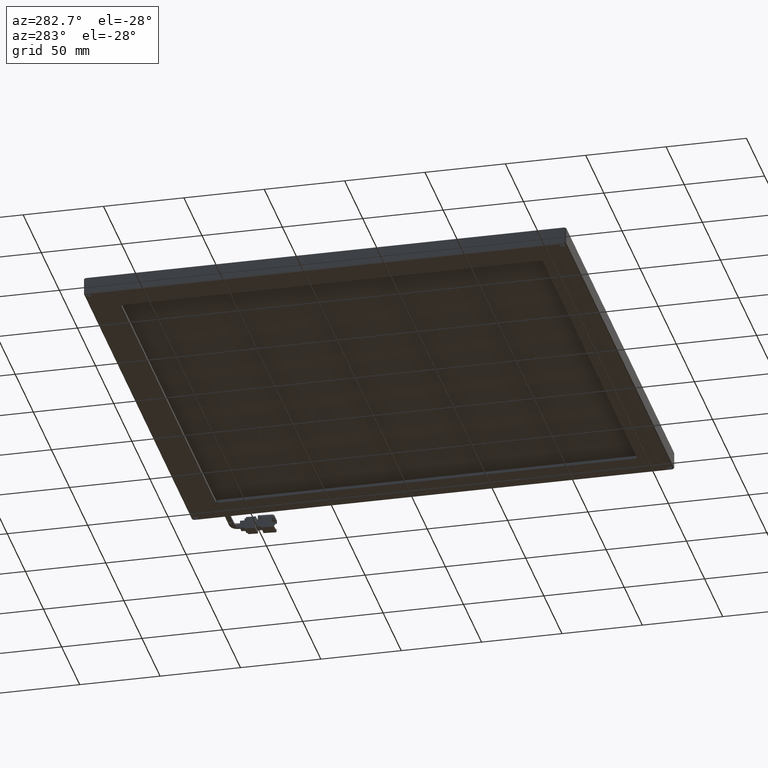
[diagram: clean part render]
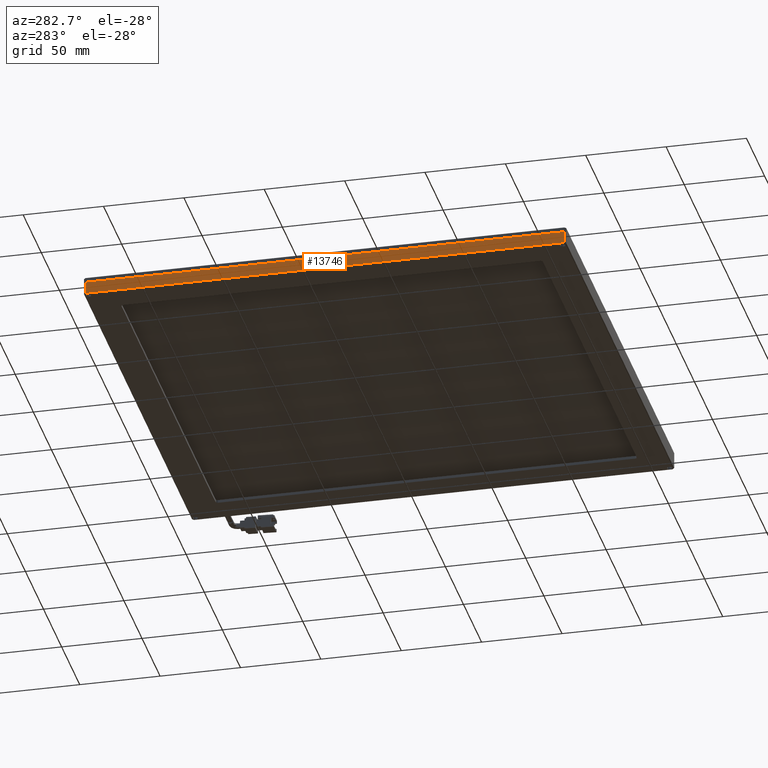
[diagram: same view with one face highlighted and labeled with its STEP entity id]
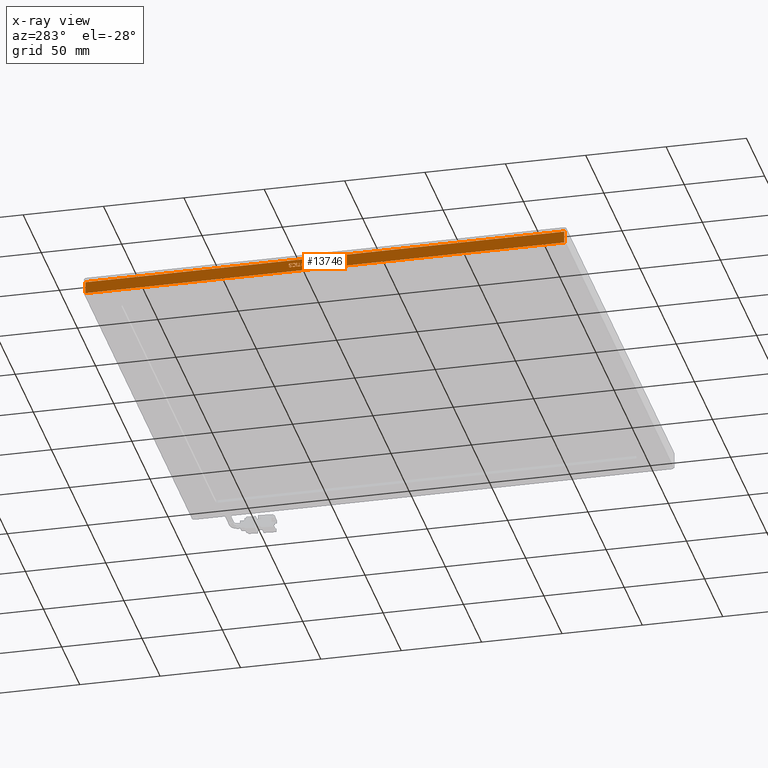
[diagram: x-ray of the same camera — body ghosted, the highlighted face saturated]
A machine part, auxiliary view. The second image highlights one B-rep face of the part: STEP entity #13746.
The next image is the same camera in x-ray: the body ghosted, the highlighted face saturated — about 0% of this face is hidden behind the body in this view.
In plain terms, the highlighted planar face has unit normal (1, 0, 0).
Its self-contained STEP definition (entity closure, byte-faithful):
#11 = CARTESIAN_POINT ( 'NONE',  ( -179.7273477157360400, 47.39288332528318600, 2.699388700261137900 ) ) ;
#35 = EDGE_CURVE ( 'NONE', #16660, #2575, #2245, .T. ) ;
#48 = CARTESIAN_POINT ( 'NONE',  ( -179.7273477157360400, 58.73948959894465100, 2.699388700261096100 ) ) ;
#88 = VERTEX_POINT ( 'NONE', #2590 ) ;
#94 = ORIENTED_EDGE ( 'NONE', *, *, #11409, .F. ) ;
#96 = CARTESIAN_POINT ( 'NONE',  ( -179.7273477157360400, 45.85968970711123700, 2.850551490958766400 ) ) ;
#119 = ORIENTED_EDGE ( 'NONE', *, *, #2083, .F. ) ;
#130 = EDGE_CURVE ( 'NONE', #11535, #4397, #760, .T. ) ;
#137 = CARTESIAN_POINT ( 'NONE',  ( -179.7273477157360400, 53.78566320630001500, 2.133609900910063300 ) ) ;
#145 = VERTEX_POINT ( 'NONE', #9958 ) ;
#166 = B_SPLINE_CURVE_WITH_KNOTS ( 'NONE', 3,
 ( #8848, #8637, #8590, #9153 ),
 .UNSPECIFIED., .F., .F.,
 ( 4, 4 ),
 ( 9.000000000000000000, 10.00000000000000000 ),
 .UNSPECIFIED. ) ;
#173 = CARTESIAN_POINT ( 'NONE',  ( -179.7273477157360400, 42.95109909199285200, 3.555545028327437700 ) ) ;
#184 = VECTOR ( 'NONE', #17505, 1000.000000000000000 ) ;
#193 = CARTESIAN_POINT ( 'NONE',  ( -179.7273477157360400, 44.20731004242755800, 3.005533913890100300 ) ) ;
#214 = CARTESIAN_POINT ( 'NONE',  ( -179.7273477157360400, 56.36381355784131100, 0.4900863746796839100 ) ) ;
#221 = CARTESIAN_POINT ( 'NONE',  ( -179.7273477157360400, 44.94135547238979500, 0.8040398630518239600 ) ) ;
#238 = CARTESIAN_POINT ( 'NONE',  ( -179.7273477157360400, 46.86137980986952600, 0.4900863746797184900 ) ) ;
#244 = VECTOR ( 'NONE', #10589, 1000.000000000000000 ) ;
#257 = ORIENTED_EDGE ( 'NONE', *, *, #8812, .F. ) ;
#262 = DIRECTION ( 'NONE',  ( -0.0000000000000000000, 1.000000000000000000, -1.360913797754126900E-014 ) ) ;
#277 = CARTESIAN_POINT ( 'NONE',  ( -179.7273477157360400, 188.4538071065989300, 4.999999999999931600 ) ) ;
#316 = VERTEX_POINT ( 'NONE', #5748 ) ;
#334 = CARTESIAN_POINT ( 'NONE',  ( -179.7273477157360400, 59.04675028039389400, 0.9708192032356552900 ) ) ;
#349 = CARTESIAN_POINT ( 'NONE',  ( -179.7273477157360400, 61.37172323875000800, 0.4708192032356478500 ) ) ;
#418 = VERTEX_POINT ( 'NONE', #7034 ) ;
#433 = B_SPLINE_CURVE_WITH_KNOTS ( 'NONE', 3,
 ( #7506, #6049, #8979, #221 ),
 .UNSPECIFIED., .F., .F.,
 ( 4, 4 ),
 ( 2.000000000000000000, 3.000000000000000000 ),
 .UNSPECIFIED. ) ;
#451 = VECTOR ( 'NONE', #2109, 1000.000000000000000 ) ;
#502 = CARTESIAN_POINT ( 'NONE',  ( -179.7273477157360400, 40.13359600531966700, -0.1728803052961011600 ) ) ;
#517 = B_SPLINE_CURVE_WITH_KNOTS ( 'NONE', 3,
 ( #15291, #6424, #7946, #18246 ),
 .UNSPECIFIED., .F., .F.,
 ( 4, 4 ),
 ( 4.000000000000000000, 5.000000000000000000 ),
 .UNSPECIFIED. ) ;
#534 = ORIENTED_EDGE ( 'NONE', *, *, #5876, .F. ) ;
#554 = CARTESIAN_POINT ( 'NONE',  ( -179.7273477157360400, 47.92445444480736000, 2.059853816540148300 ) ) ;
#559 = VERTEX_POINT ( 'NONE', #10223 ) ;
#568 = B_SPLINE_CURVE_WITH_KNOTS ( 'NONE', 3,
 ( #14068, #15535, #9669, #912 ),
 .UNSPECIFIED., .F., .F.,
 ( 4, 4 ),
 ( 8.000000000000000000, 9.000000000000000000 ),
 .UNSPECIFIED. ) ;
#582 = CARTESIAN_POINT ( 'NONE',  ( -179.7273477157360400, 47.39288332528318600, 2.699388700261137900 ) ) ;
#588 = EDGE_LOOP ( 'NONE', ( #15503, #15302, #11087, #10152, #1591, #7525, #1187, #14790 ) ) ;
#605 = VERTEX_POINT ( 'NONE', #4458 ) ;
#621 = CARTESIAN_POINT ( 'NONE',  ( -179.7273477157360400, 45.37152042641895400, 0.9319468397960134500 ) ) ;
#657 = CARTESIAN_POINT ( 'NONE',  ( -179.7273477157360400, 57.89693957190306200, 2.997725639146964200 ) ) ;
#720 = VERTEX_POINT ( 'NONE', #12563 ) ;
#750 = CARTESIAN_POINT ( 'NONE',  ( -179.7273477157360400, 60.81135276822541200, 2.711016607237819000 ) ) ;
#760 = LINE ( 'NONE', #9654, #12476 ) ;
#776 = B_SPLINE_CURVE_WITH_KNOTS ( 'NONE', 3,
 ( #13182, #2803, #13244, #4422 ),
 .UNSPECIFIED., .F., .F.,
 ( 4, 4 ),
 ( 5.000000000000000000, 6.000000000000000000 ),
 .UNSPECIFIED. ) ;
#782 = CARTESIAN_POINT ( 'NONE',  ( -179.7273477157360400, 44.30134735989626900, 1.745900328168098500 ) ) ;
#817 = LINE ( 'NONE', #12049, #12526 ) ;
#868 = LINE ( 'NONE', #10898, #16026 ) ;
#894 = CARTESIAN_POINT ( 'NONE',  ( -179.7273477157360400, 50.71224514248169200, 3.036598002586679400 ) ) ;
#912 = CARTESIAN_POINT ( 'NONE',  ( -179.7273477157360400, 48.44514130256810300, 1.908691025842491800 ) ) ;
#953 = VERTEX_POINT ( 'NONE', #16867 ) ;
#1058 = CARTESIAN_POINT ( 'NONE',  ( -179.7273477157360400, 56.36381355784131100, 0.8389235839820277100 ) ) ;
#1086 = CARTESIAN_POINT ( 'NONE',  ( -179.7273477157360400, 60.59799419602423900, 1.455202653749449300 ) ) ;
#1094 = CARTESIAN_POINT ( 'NONE',  ( -179.7273477157360400, 43.18223234603451000, 0.5068746344024099800 ) ) ;
#1128 = LINE ( 'NONE', #4740, #8879 ) ;
#1183 = VERTEX_POINT ( 'NONE', #3254 ) ;
#1187 = ORIENTED_EDGE ( 'NONE', *, *, #2461, .F. ) ;
#1236 = VERTEX_POINT ( 'NONE', #3073 ) ;
#1321 = CARTESIAN_POINT ( 'NONE',  ( -179.7273477157360400, 49.97461669467212200, 0.4862667424460620500 ) ) ;
#1334 = CARTESIAN_POINT ( 'NONE',  ( -179.7273477157360400, 45.43662318466673600, 2.579289998260035700 ) ) ;
#1346 = EDGE_CURVE ( 'NONE', #15351, #2542, #166, .T. ) ;
#1347 = FACE_BOUND ( 'NONE', #6931, .T. ) ;
#1393 = VERTEX_POINT ( 'NONE', #9035 ) ;
#1401 = B_SPLINE_CURVE_WITH_KNOTS ( 'NONE', 3,
 ( #17304, #2308, #3502, #3634 ),
 .UNSPECIFIED., .F., .F.,
 ( 4, 4 ),
 ( 13.00000000000000000, 14.00000000000000000 ),
 .UNSPECIFIED. ) ;
#1429 = LINE ( 'NONE', #11322, #9189 ) ;
#1491 = CARTESIAN_POINT ( 'NONE',  ( -179.7273477157360400, 48.44514130256810300, 1.908691025842491800 ) ) ;
#1591 = ORIENTED_EDGE ( 'NONE', *, *, #15058, .F. ) ;
#1707 = CARTESIAN_POINT ( 'NONE',  ( -179.7273477157360400, 47.39288332528318600, 2.699388700261137900 ) ) ;
#1712 = ORIENTED_EDGE ( 'NONE', *, *, #8562, .F. ) ;
#1750 = EDGE_CURVE ( 'NONE', #17295, #605, #17384, .T. ) ;
#1752 = DIRECTION ( 'NONE',  ( -0.0000000000000000000, 1.000000000000000000, -0.0000000000000000000 ) ) ;
#1788 = VECTOR ( 'NONE', #17805, 1000.000000000000000 ) ;
#1789 = LINE ( 'NONE', #7414, #5672 ) ;
#1790 = CARTESIAN_POINT ( 'NONE',  ( -179.7273477157360400, 52.19838629986400500, 2.990086374679700000 ) ) ;
#1797 = VERTEX_POINT ( 'NONE', #7029 ) ;
#1816 = FACE_BOUND ( 'NONE', #11080, .T. ) ;
#1817 = ORIENTED_EDGE ( 'NONE', *, *, #16580, .F. ) ;
#1892 = CARTESIAN_POINT ( 'NONE',  ( -179.7273477157360400, 46.34069295210846200, 1.931946839795986500 ) ) ;
#1918 = ORIENTED_EDGE ( 'NONE', *, *, #16228, .F. ) ;
#1934 = CARTESIAN_POINT ( 'NONE',  ( -179.7273477157360400, -109.5461928934010400, 4.999999999999931600 ) ) ;
#1957 = CARTESIAN_POINT ( 'NONE',  ( -179.7273477157360400, 57.48117429337401800, 1.745900328168043000 ) ) ;
#1983 = LINE ( 'NONE', #277, #14158 ) ;
#2083 = EDGE_CURVE ( 'NONE', #6203, #4902, #1401, .T. ) ;
#2103 = DIRECTION ( 'NONE',  ( -0.0000000000000000000, 1.000000000000000000, -0.0000000000000000000 ) ) ;
#2109 = DIRECTION ( 'NONE',  ( -0.0000000000000000000, 1.000000000000000000, -1.332642412706267800E-014 ) ) ;
#2112 = EDGE_LOOP ( 'NONE', ( #14561, #534, #15702, #9963 ) ) ;
#2146 = VERTEX_POINT ( 'NONE', #13292 ) ;
#2148 = CARTESIAN_POINT ( 'NONE',  ( -179.7273477157360400, 48.44514130256808900, 0.4900863746797115600 ) ) ;
#2170 = CARTESIAN_POINT ( 'NONE',  ( -179.7273477157360400, 44.19642578066444800, 0.4940750171891703000 ) ) ;
#2232 = CARTESIAN_POINT ( 'NONE',  ( -179.7273477157360400, 55.59366753296285400, 2.990086374679686200 ) ) ;
#2233 = CARTESIAN_POINT ( 'NONE',  ( -179.7273477157360400, 60.46048743561311800, 1.335103951748337800 ) ) ;
#2241 = DIRECTION ( 'NONE',  ( -0.0000000000000000000, -0.0000000000000000000, 1.000000000000000000 ) ) ;
#2245 = B_SPLINE_CURVE_WITH_KNOTS ( 'NONE', 3,
 ( #3424, #1086, #2233, #3496 ),
 .UNSPECIFIED., .F., .F.,
 ( 4, 4 ),
 ( 10.00000000000000000, 11.00000000000000000 ),
 .UNSPECIFIED. ) ;
#2287 = LINE ( 'NONE', #11763, #17426 ) ;
#2298 = VERTEX_POINT ( 'NONE', #8488 ) ;
#2308 = CARTESIAN_POINT ( 'NONE',  ( -179.7273477157360400, 60.13510885259526600, 2.904702383333006100 ) ) ;
#2338 = CARTESIAN_POINT ( 'NONE',  ( -179.7273477157360400, 58.73948959894465100, 2.699388700261096100 ) ) ;
#2347 = DIRECTION ( 'NONE',  ( -0.0000000000000000000, -9.782702880918459400E-015, -1.000000000000000000 ) ) ;
#2416 = CARTESIAN_POINT ( 'NONE',  ( -179.7273477157360400, -110.5461928934010600, -2.500000000000067900 ) ) ;
#2461 = EDGE_CURVE ( 'NONE', #14147, #7461, #16894, .T. ) ;
#2510 = VERTEX_POINT ( 'NONE', #5039 ) ;
#2542 = VERTEX_POINT ( 'NONE', #18766 ) ;
#2557 = VERTEX_POINT ( 'NONE', #554 ) ;
#2575 = VERTEX_POINT ( 'NONE', #17605 ) ;
#2590 = CARTESIAN_POINT ( 'NONE',  ( -179.7273477157360400, 40.13359600531966700, -0.1728803052961011600 ) ) ;
#2600 = B_SPLINE_CURVE_WITH_KNOTS ( 'NONE', 3,
 ( #6106, #10529, #349, #10596 ),
 .UNSPECIFIED., .F., .F.,
 ( 4, 4 ),
 ( 6.000000000000000000, 7.000000000000000000 ),
 .UNSPECIFIED. ) ;
#2622 = VECTOR ( 'NONE', #16338, 1000.000000000000000 ) ;
#2640 = DIRECTION ( 'NONE',  ( -0.0000000000000000000, -0.0000000000000000000, 1.000000000000000000 ) ) ;
#2648 = VECTOR ( 'NONE', #6602, 1000.000000000000000 ) ;
#2748 = CARTESIAN_POINT ( 'NONE',  ( -179.7273477157360400, 42.50250460446351800, -0.1728803052961080900 ) ) ;
#2764 = ORIENTED_EDGE ( 'NONE', *, *, #6250, .F. ) ;
#2770 = CARTESIAN_POINT ( 'NONE',  ( -179.7273477157360400, 44.98475731122159300, 2.699388700261144500 ) ) ;
#2797 = EDGE_CURVE ( 'NONE', #5925, #3739, #11731, .T. ) ;
#2803 = CARTESIAN_POINT ( 'NONE',  ( -179.7273477157360400, 60.25814833339565300, 0.4630109284925396100 ) ) ;
#2808 = ORIENTED_EDGE ( 'NONE', *, *, #16608, .T. ) ;
#2826 = CARTESIAN_POINT ( 'NONE',  ( -179.7273477157360400, 39.68487240825228900, -0.1728803052961011600 ) ) ;
#2840 = CARTESIAN_POINT ( 'NONE',  ( -179.7273477157360400, 59.57473838207077700, 2.141249165377355500 ) ) ;
#2903 = EDGE_CURVE ( 'NONE', #2991, #2298, #8221, .T. ) ;
#2919 = CARTESIAN_POINT ( 'NONE',  ( -179.7273477157360400, 61.84900825767919500, 2.788423313565533000 ) ) ;
#2920 = CARTESIAN_POINT ( 'NONE',  ( -179.7273477157360400, 44.82203421765768100, 1.897063118865775800 ) ) ;
#2932 = VERTEX_POINT ( 'NONE', #894 ) ;
#2934 = CARTESIAN_POINT ( 'NONE',  ( -179.7273477157360400, 58.62016834421240900, 3.036598002586654600 ) ) ;
#2941 = CARTESIAN_POINT ( 'NONE',  ( -179.7273477157360400, 51.44987359029124700, 2.990086374679695100 ) ) ;
#2949 = CARTESIAN_POINT ( 'NONE',  ( -179.7273477157360400, 44.97394065356869000, 3.036598002586703000 ) ) ;
#2956 = EDGE_CURVE ( 'NONE', #88, #720, #4972, .T. ) ;
#2991 = VERTEX_POINT ( 'NONE', #15472 ) ;
#2995 = CARTESIAN_POINT ( 'NONE',  ( -179.7273477157360400, 39.45380710659879500, 0.6428133909119476700 ) ) ;
#3012 = VERTEX_POINT ( 'NONE', #16110 ) ;
#3015 = ORIENTED_EDGE ( 'NONE', *, *, #6399, .F. ) ;
#3024 = LINE ( 'NONE', #7441, #10385 ) ;
#3061 = CARTESIAN_POINT ( 'NONE',  ( -179.7273477157360400, 54.06770755459627500, 1.862179397935523500 ) ) ;
#3073 = CARTESIAN_POINT ( 'NONE',  ( -179.7273477157360400, 59.11915428255748100, 1.280784049098260300 ) ) ;
#3088 = ORIENTED_EDGE ( 'NONE', *, *, #7837, .F. ) ;
#3118 = CARTESIAN_POINT ( 'NONE',  ( -179.7273477157360400, 54.05330787909618100, 1.304039863051789500 ) ) ;
#3139 = CARTESIAN_POINT ( 'NONE',  ( -179.7273477157360400, 40.13359600531966700, 3.555545028327451900 ) ) ;
#3164 = CARTESIAN_POINT ( 'NONE',  ( -179.7273477157360400, 61.04999527768978100, 0.8234760447716092900 ) ) ;
#3170 = CARTESIAN_POINT ( 'NONE',  ( -179.7273477157360400, 46.86137980986952600, 0.4900863746797184900 ) ) ;
#3215 = VERTEX_POINT ( 'NONE', #13875 ) ;
#3229 = CARTESIAN_POINT ( 'NONE',  ( -179.7273477157360400, 59.89288332528314400, 1.559853816540134100 ) ) ;
#3254 = CARTESIAN_POINT ( 'NONE',  ( -179.7273477157360400, 39.45380710659879500, 2.875783293389708300 ) ) ;
#3288 = CARTESIAN_POINT ( 'NONE',  ( -179.7273477157360400, 60.82223702998840100, 0.4552026537494521800 ) ) ;
#3293 = CARTESIAN_POINT ( 'NONE',  ( -179.7273477157360400, 44.82203421765768100, 1.897063118865775800 ) ) ;
#3338 = EDGE_CURVE ( 'NONE', #5518, #9197, #17391, .T. ) ;
#3374 = ORIENTED_EDGE ( 'NONE', *, *, #5165, .F. ) ;
#3387 = CARTESIAN_POINT ( 'NONE',  ( -179.7273477157360400, 57.48117429337401800, 1.745900328168043000 ) ) ;
#3404 = CARTESIAN_POINT ( 'NONE',  ( -179.7273477157360400, 59.88930030743594600, 2.129621258400597600 ) ) ;
#3424 = CARTESIAN_POINT ( 'NONE',  ( -179.7273477157360400, 60.88727218412587700, 1.501714281656430000 ) ) ;
#3436 = VERTEX_POINT ( 'NONE', #5632 ) ;
#3475 = VERTEX_POINT ( 'NONE', #5140 ) ;
#3496 = CARTESIAN_POINT ( 'NONE',  ( -179.7273477157360400, 60.47508992344447900, 1.141249165377321600 ) ) ;
#3502 = CARTESIAN_POINT ( 'NONE',  ( -179.7273477157360400, 60.46778867952878800, 3.059853816540107500 ) ) ;
#3506 = CARTESIAN_POINT ( 'NONE',  ( -179.7273477157360400, 60.83305368764130300, 0.8156677700285228600 ) ) ;
#3531 = CARTESIAN_POINT ( 'NONE',  ( -179.7273477157360400, 46.31899203269244900, 2.691749435793824800 ) ) ;
#3597 = CARTESIAN_POINT ( 'NONE',  ( -179.7273477157360400, 58.01267780878788500, 1.769156142121530700 ) ) ;
#3623 = DIRECTION ( 'NONE',  ( -0.0000000000000000000, -0.0000000000000000000, 1.000000000000000000 ) ) ;
#3634 = CARTESIAN_POINT ( 'NONE',  ( -179.7273477157360400, 60.88727218412587700, 3.036598002586647500 ) ) ;
#3642 = CARTESIAN_POINT ( 'NONE',  ( -179.7273477157360400, 44.55087413112396200, 2.660685347097228700 ) ) ;
#3685 = VECTOR ( 'NONE', #18087, 1000.000000000000000 ) ;
#3689 = EDGE_CURVE ( 'NONE', #2932, #5925, #4075, .T. ) ;
#3720 = EDGE_CURVE ( 'NONE', #3475, #953, #433, .T. ) ;
#3739 = VERTEX_POINT ( 'NONE', #17796 ) ;
#3953 = B_SPLINE_CURVE_WITH_KNOTS ( 'NONE', 3,
 ( #3118, #4613, #6090, #16376 ),
 .UNSPECIFIED., .F., .F.,
 ( 4, 4 ),
 ( 5.000000000000000000, 6.000000000000000000 ),
 .UNSPECIFIED. ) ;
#3960 = CARTESIAN_POINT ( 'NONE',  ( -179.7273477157360400, 61.84190982609433000, 2.292411956075004900 ) ) ;
#4013 = CARTESIAN_POINT ( 'NONE',  ( -179.7273477157360400, 54.30283465032387400, 0.8389235839820347000 ) ) ;
#4016 = ORIENTED_EDGE ( 'NONE', *, *, #5775, .F. ) ;
#4044 = EDGE_CURVE ( 'NONE', #9637, #2146, #18519, .T. ) ;
#4058 = EDGE_CURVE ( 'NONE', #13141, #9466, #17135, .T. ) ;
#4075 = B_SPLINE_CURVE_WITH_KNOTS ( 'NONE', 3,
 ( #8777, #2941, #5924, #16218 ),
 .UNSPECIFIED., .F., .F.,
 ( 4, 4 ),
 ( 0.0000000000000000000, 1.000000000000000000 ),
 .UNSPECIFIED. ) ;
#4109 = VERTEX_POINT ( 'NONE', #5517 ) ;
#4120 = ORIENTED_EDGE ( 'NONE', *, *, #8694, .F. ) ;
#4145 = LINE ( 'NONE', #9265, #3685 ) ;
#4150 = CARTESIAN_POINT ( 'NONE',  ( -179.7273477157360400, 46.00443010732740800, 1.548225909563425000 ) ) ;
#4183 = ORIENTED_EDGE ( 'NONE', *, *, #4555, .F. ) ;
#4203 = B_SPLINE_CURVE_WITH_KNOTS ( 'NONE', 3,
 ( #9506, #2170, #13980, #5181 ),
 .UNSPECIFIED., .F., .F.,
 ( 4, 4 ),
 ( 12.00000000000000000, 13.00000000000000000 ),
 .UNSPECIFIED. ) ;
#4241 = LINE ( 'NONE', #18759, #10207 ) ;
#4312 = ORIENTED_EDGE ( 'NONE', *, *, #9168, .F. ) ;
#4317 = VERTEX_POINT ( 'NONE', #10444 ) ;
#4340 = VECTOR ( 'NONE', #18461, 1000.000000000000000 ) ;
#4345 = CARTESIAN_POINT ( 'NONE',  ( -179.7273477157360400, 43.18223234603452500, 2.875783293389694100 ) ) ;
#4366 = DIRECTION ( 'NONE',  ( -0.0000000000000000000, 1.000000000000000000, -1.279482904844069300E-014 ) ) ;
#4377 = EDGE_LOOP ( 'NONE', ( #17803, #4693, #2808, #8689 ) ) ;
#4397 = VERTEX_POINT ( 'NONE', #12886 ) ;
#4422 = CARTESIAN_POINT ( 'NONE',  ( -179.7273477157360400, 59.94358640803060500, 1.141249165377326900 ) ) ;
#4429 = CARTESIAN_POINT ( 'NONE',  ( -179.7273477157360400, -109.5461928934010600, -2.500000000000068800 ) ) ;
#4458 = CARTESIAN_POINT ( 'NONE',  ( -179.7273477157360400, 55.07298067520211000, 0.8389235839820347000 ) ) ;
#4463 = LINE ( 'NONE', #14861, #2622 ) ;
#4469 = CARTESIAN_POINT ( 'NONE',  ( -179.7273477157360400, 58.01267780878788500, 1.769156142121530700 ) ) ;
#4498 = CARTESIAN_POINT ( 'NONE',  ( -179.7273477157360400, 61.27782112950181000, 1.234272421191305600 ) ) ;
#4521 = EDGE_CURVE ( 'NONE', #7461, #7834, #5813, .T. ) ;
#4531 = VERTEX_POINT ( 'NONE', #11 ) ;
#4534 = LINE ( 'NONE', #16049, #184 ) ;
#4555 = EDGE_CURVE ( 'NONE', #12166, #1393, #14935, .T. ) ;
#4575 = CARTESIAN_POINT ( 'NONE',  ( -179.7273477157360400, 39.45380710659879500, 2.875783293389708300 ) ) ;
#4613 = CARTESIAN_POINT ( 'NONE',  ( -179.7273477157360400, 54.06040631068059800, 0.7615168776542585700 ) ) ;
#4675 = CARTESIAN_POINT ( 'NONE',  ( -179.7273477157360400, 61.19818348753308600, 0.9630109284925352200 ) ) ;
#4693 = ORIENTED_EDGE ( 'NONE', *, *, #13083, .F. ) ;
#4740 = CARTESIAN_POINT ( 'NONE',  ( -179.7273477157360400, 53.20717483420695300, 2.117993351423895600 ) ) ;
#4902 = VERTEX_POINT ( 'NONE', #14076 ) ;
#4922 = CARTESIAN_POINT ( 'NONE',  ( -179.7273477157360400, 60.47508992344447900, 1.141249165377321600 ) ) ;
#4972 = B_SPLINE_CURVE_WITH_KNOTS ( 'NONE', 3,
 ( #502, #2826, #8161, #2995 ),
 .UNSPECIFIED., .F., .F.,
 ( 4, 4 ),
 ( 1.000000000000000000, 2.000000000000000000 ),
 .UNSPECIFIED. ) ;
#4984 = CARTESIAN_POINT ( 'NONE',  ( -179.7273477157360400, 46.86137980986954000, 2.059853816540155400 ) ) ;
#5015 = CARTESIAN_POINT ( 'NONE',  ( -179.7273477157360400, 61.77680706784677500, 1.234272421191298500 ) ) ;
#5018 = CARTESIAN_POINT ( 'NONE',  ( -179.7273477157360400, 49.97461669467212900, 2.990086374679705300 ) ) ;
#5039 = CARTESIAN_POINT ( 'NONE',  ( -179.7273477157360400, 46.00443010732740800, 2.478458467702990400 ) ) ;
#5054 = CARTESIAN_POINT ( 'NONE',  ( -179.7273477157360400, 55.59366753296285400, 0.8389235839820277100 ) ) ;
#5058 = ORIENTED_EDGE ( 'NONE', *, *, #11082, .F. ) ;
#5060 = LINE ( 'NONE', #1892, #244 ) ;
#5061 = VERTEX_POINT ( 'NONE', #16510 ) ;
#5081 = CARTESIAN_POINT ( 'NONE',  ( -179.7273477157360400, 58.22590117276831000, 0.8312843195147356900 ) ) ;
#5125 = VERTEX_POINT ( 'NONE', #2148 ) ;
#5140 = CARTESIAN_POINT ( 'NONE',  ( -179.7273477157360400, 44.30134735989626900, 1.745900328168098500 ) ) ;
#5157 = VECTOR ( 'NONE', #2241, 1000.000000000000000 ) ;
#5165 = EDGE_CURVE ( 'NONE', #2146, #10795, #10378, .T. ) ;
#5180 = VECTOR ( 'NONE', #14436, 1000.000000000000000 ) ;
#5181 = CARTESIAN_POINT ( 'NONE',  ( -179.7273477157360400, 43.78066050213552500, 1.734272421191361600 ) ) ;
#5202 = CARTESIAN_POINT ( 'NONE',  ( -179.7273477157360400, 58.62016834421240900, 3.036598002586654600 ) ) ;
#5245 = FACE_BOUND ( 'NONE', #2112, .T. ) ;
#5332 = ORIENTED_EDGE ( 'NONE', *, *, #16850, .F. ) ;
#5341 = DIRECTION ( 'NONE',  ( -0.0000000000000000000, 1.000000000000000000, -9.995142528641479400E-015 ) ) ;
#5414 = CARTESIAN_POINT ( 'NONE',  ( -179.7273477157360400, 57.17742902566175200, 0.4900863746796838000 ) ) ;
#5517 = CARTESIAN_POINT ( 'NONE',  ( -179.7273477157360400, 44.97394065356869000, 3.036598002586703000 ) ) ;
#5518 = VERTEX_POINT ( 'NONE', #11949 ) ;
#5534 = EDGE_LOOP ( 'NONE', ( #8275, #11292, #16843, #1918, #7436, #12779, #6096, #14733 ) ) ;
#5632 = CARTESIAN_POINT ( 'NONE',  ( -179.7273477157360400, 44.82203421765768100, 1.548225909563431900 ) ) ;
#5643 = CARTESIAN_POINT ( 'NONE',  ( -179.7273477157360400, 60.88727218412587700, 1.501714281656430000 ) ) ;
#5651 = EDGE_CURVE ( 'NONE', #17451, #11535, #4145, .T. ) ;
#5672 = VECTOR ( 'NONE', #13415, 1000.000000000000000 ) ;
#5697 = FACE_BOUND ( 'NONE', #18462, .T. ) ;
#5721 = EDGE_CURVE ( 'NONE', #18463, #5125, #9163, .T. ) ;
#5748 = CARTESIAN_POINT ( 'NONE',  ( -179.7273477157360400, 46.34069295210844800, 0.4900863746797184900 ) ) ;
#5775 = EDGE_CURVE ( 'NONE', #5856, #17451, #13795, .T. ) ;
#5793 = CARTESIAN_POINT ( 'NONE',  ( -179.7273477157360400, 42.95109909199283700, -0.1728803052961080900 ) ) ;
#5808 = ORIENTED_EDGE ( 'NONE', *, *, #16358, .F. ) ;
#5811 = CARTESIAN_POINT ( 'NONE',  ( -179.7273477157360400, 52.19838629986400500, 0.4900863746796976800 ) ) ;
#5813 = B_SPLINE_CURVE_WITH_KNOTS ( 'NONE', 3,
 ( #8700, #16079, #5793, #19003 ),
 .UNSPECIFIED., .F., .F.,
 ( 4, 4 ),
 ( 3.000000000000000000, 4.000000000000000000 ),
 .UNSPECIFIED. ) ;
#5841 = CARTESIAN_POINT ( 'NONE',  ( -179.7273477157360400, -109.5461928934010400, 4.999999999999931600 ) ) ;
#5856 = VERTEX_POINT ( 'NONE', #10072 ) ;
#5860 = ORIENTED_EDGE ( 'NONE', *, *, #9798, .F. ) ;
#5876 = EDGE_CURVE ( 'NONE', #3739, #3215, #8119, .T. ) ;
#5913 = EDGE_CURVE ( 'NONE', #559, #14576, #7311, .T. ) ;
#5924 = CARTESIAN_POINT ( 'NONE',  ( -179.7273477157360400, 51.83663670548872200, 2.563842459049605200 ) ) ;
#5925 = VERTEX_POINT ( 'NONE', #8768 ) ;
#5928 = VECTOR ( 'NONE', #3623, 1000.000000000000000 ) ;
#5936 = B_SPLINE_CURVE_WITH_KNOTS ( 'NONE', 3,
 ( #11897, #137, #3061, #13370 ),
 .UNSPECIFIED., .F., .F.,
 ( 4, 4 ),
 ( 6.000000000000000000, 7.000000000000000000 ),
 .UNSPECIFIED. ) ;
#5940 = EDGE_CURVE ( 'NONE', #8092, #14965, #7861, .T. ) ;
#5945 = VECTOR ( 'NONE', #10491, 1000.000000000000000 ) ;
#6003 = VERTEX_POINT ( 'NONE', #214 ) ;
#6031 = ORIENTED_EDGE ( 'NONE', *, *, #18546, .F. ) ;
#6040 = ORIENTED_EDGE ( 'NONE', *, *, #11145, .F. ) ;
#6048 = CARTESIAN_POINT ( 'NONE',  ( -179.7273477157360400, 47.92445444480736000, 2.059853816540148300 ) ) ;
#6049 = CARTESIAN_POINT ( 'NONE',  ( -179.7273477157360400, 44.32304827931214700, 1.156865714863619700 ) ) ;
#6062 = B_SPLINE_CURVE_WITH_KNOTS ( 'NONE', 3,
 ( #17902, #6156, #334, #10580 ),
 .UNSPECIFIED., .F., .F.,
 ( 4, 4 ),
 ( 1.000000000000000000, 2.000000000000000000 ),
 .UNSPECIFIED. ) ;
#6090 = CARTESIAN_POINT ( 'NONE',  ( -179.7273477157360400, 53.77842956649442400, 0.4900863746796907400 ) ) ;
#6096 = ORIENTED_EDGE ( 'NONE', *, *, #1750, .F. ) ;
#6106 = CARTESIAN_POINT ( 'NONE',  ( -179.7273477157360400, 61.77680706784677500, 1.234272421191298500 ) ) ;
#6156 = CARTESIAN_POINT ( 'NONE',  ( -179.7273477157360400, 58.88409479094029600, 0.8156677700285262000 ) ) ;
#6203 = VERTEX_POINT ( 'NONE', #12479 ) ;
#6250 = EDGE_CURVE ( 'NONE', #6277, #9433, #18624, .T. ) ;
#6277 = VERTEX_POINT ( 'NONE', #4498 ) ;
#6335 = CARTESIAN_POINT ( 'NONE',  ( -179.7273477157360400, 60.46778867952878800, 0.9243075753286743600 ) ) ;
#6378 = VECTOR ( 'NONE', #1752, 1000.000000000000000 ) ;
#6399 = EDGE_CURVE ( 'NONE', #316, #16592, #5060, .T. ) ;
#6401 = B_SPLINE_CURVE_WITH_KNOTS ( 'NONE', 3,
 ( #18225, #6463, #657, #10921 ),
 .UNSPECIFIED., .F., .F.,
 ( 4, 4 ),
 ( 7.000000000000000000, 8.000000000000000000 ),
 .UNSPECIFIED. ) ;
#6424 = CARTESIAN_POINT ( 'NONE',  ( -179.7273477157360400, 59.32879462869061600, 2.528958738119369000 ) ) ;
#6442 = B_SPLINE_CURVE_WITH_KNOTS ( 'NONE', 3,
 ( #9964, #1334, #11600, #2770 ),
 .UNSPECIFIED., .F., .F.,
 ( 4, 4 ),
 ( 4.000000000000000000, 5.000000000000000000 ),
 .UNSPECIFIED. ) ;
#6463 = CARTESIAN_POINT ( 'NONE',  ( -179.7273477157360400, 57.51727488829033800, 2.567662091283256800 ) ) ;
#6480 = VECTOR ( 'NONE', #6557, 1000.000000000000000 ) ;
#6499 = EDGE_CURVE ( 'NONE', #11457, #12915, #17454, .T. ) ;
#6507 = EDGE_CURVE ( 'NONE', #16592, #8502, #7396, .T. ) ;
#6528 = B_SPLINE_CURVE_WITH_KNOTS ( 'NONE', 3,
 ( #10253, #11693, #2919, #13241 ),
 .UNSPECIFIED., .F., .F.,
 ( 4, 4 ),
 ( 12.00000000000000000, 13.00000000000000000 ),
 .UNSPECIFIED. ) ;
#6534 = LINE ( 'NONE', #7514, #13901 ) ;
#6557 = DIRECTION ( 'NONE',  ( -0.0000000000000000000, -0.0000000000000000000, 1.000000000000000000 ) ) ;
#6572 = CARTESIAN_POINT ( 'NONE',  ( -179.7273477157360400, 61.31033870657037700, 2.327295677005229500 ) ) ;
#6602 = DIRECTION ( 'NONE',  ( -0.0000000000000000000, -1.000000000000000000, -0.0000000000000000000 ) ) ;
#6896 = VECTOR ( 'NONE', #12605, 1000.000000000000000 ) ;
#6902 = ORIENTED_EDGE ( 'NONE', *, *, #8498, .F. ) ;
#6908 = LINE ( 'NONE', #1934, #10823 ) ;
#6931 = EDGE_LOOP ( 'NONE', ( #1712, #6940, #3015, #1817, #16057, #17865, #7908, #16801, #6902, #11758 ) ) ;
#6940 = ORIENTED_EDGE ( 'NONE', *, *, #6507, .F. ) ;
#7004 = VECTOR ( 'NONE', #262, 1000.000000000000000 ) ;
#7029 = CARTESIAN_POINT ( 'NONE',  ( -179.7273477157360400, 60.83305368764130300, 0.8156677700285228600 ) ) ;
#7034 = CARTESIAN_POINT ( 'NONE',  ( -179.7273477157360400, 52.19838629986400500, 2.990086374679700000 ) ) ;
#7037 = EDGE_CURVE ( 'NONE', #720, #1183, #13752, .T. ) ;
#7047 = CARTESIAN_POINT ( 'NONE',  ( -179.7273477157360400, 45.48374324956643000, 0.4552026537495007500 ) ) ;
#7297 = ORIENTED_EDGE ( 'NONE', *, *, #8353, .F. ) ;
#7311 = LINE ( 'NONE', #13197, #10779 ) ;
#7371 = CARTESIAN_POINT ( 'NONE',  ( -179.7273477157360400, 61.31033870657037700, 2.125801626166982800 ) ) ;
#7390 = CARTESIAN_POINT ( 'NONE',  ( -179.7273477157360400, 59.57473838207077700, 2.617993351423868000 ) ) ;
#7396 = B_SPLINE_CURVE_WITH_KNOTS ( 'NONE', 3,
 ( #13883, #3531, #12413, #15344 ),
 .UNSPECIFIED., .F., .F.,
 ( 4, 4 ),
 ( 9.000000000000000000, 10.00000000000000000 ),
 .UNSPECIFIED. ) ;
#7414 = CARTESIAN_POINT ( 'NONE',  ( -179.7273477157360400, 47.92445444480736000, 2.059853816540148300 ) ) ;
#7436 = ORIENTED_EDGE ( 'NONE', *, *, #2903, .F. ) ;
#7439 = ORIENTED_EDGE ( 'NONE', *, *, #5913, .F. ) ;
#7441 = CARTESIAN_POINT ( 'NONE',  ( -179.7273477157360400, 55.59366753296285400, 0.8389235839820277100 ) ) ;
#7461 = VERTEX_POINT ( 'NONE', #16781 ) ;
#7485 = CARTESIAN_POINT ( 'NONE',  ( -179.7273477157360400, 46.00443010732740800, 1.548225909563425000 ) ) ;
#7506 = CARTESIAN_POINT ( 'NONE',  ( -179.7273477157360400, 44.30134735989626900, 1.745900328168098500 ) ) ;
#7512 = VERTEX_POINT ( 'NONE', #15433 ) ;
#7514 = CARTESIAN_POINT ( 'NONE',  ( -179.7273477157360400, 59.88930030743594600, 2.571481723516892500 ) ) ;
#7525 = ORIENTED_EDGE ( 'NONE', *, *, #4521, .F. ) ;
#7671 = CARTESIAN_POINT ( 'NONE',  ( -179.7273477157360400, 60.86563886882018400, 1.943574746772695800 ) ) ;
#7737 = DIRECTION ( 'NONE',  ( 1.000000000000000000, 0.0000000000000000000, 0.0000000000000000000 ) ) ;
#7752 = CARTESIAN_POINT ( 'NONE',  ( -179.7273477157360400, 58.59846742479641100, 0.4552026537494591200 ) ) ;
#7761 = CARTESIAN_POINT ( 'NONE',  ( -179.7273477157360400, 60.81135276822541200, 2.711016607237819000 ) ) ;
#7813 = VERTEX_POINT ( 'NONE', #5841 ) ;
#7819 = CARTESIAN_POINT ( 'NONE',  ( -179.7273477157360400, 49.55155017222762100, 1.757528235144828500 ) ) ;
#7834 = VERTEX_POINT ( 'NONE', #2748 ) ;
#7837 = EDGE_CURVE ( 'NONE', #4902, #16555, #6528, .T. ) ;
#7861 = B_SPLINE_CURVE_WITH_KNOTS ( 'NONE', 3,
 ( #2934, #10270, #10135, #13255 ),
 .UNSPECIFIED., .F., .F.,
 ( 4, 4 ),
 ( 6.000000000000000000, 7.000000000000000000 ),
 .UNSPECIFIED. ) ;
#7908 = ORIENTED_EDGE ( 'NONE', *, *, #16259, .F. ) ;
#7946 = CARTESIAN_POINT ( 'NONE',  ( -179.7273477157360400, 59.05033329824144100, 2.715005249747271000 ) ) ;
#7974 = CARTESIAN_POINT ( 'NONE',  ( -179.7273477157360400, 43.78066050213552500, 1.734272421191361600 ) ) ;
#8092 = VERTEX_POINT ( 'NONE', #5202 ) ;
#8107 = ORIENTED_EDGE ( 'NONE', *, *, #10713, .F. ) ;
#8119 = B_SPLINE_CURVE_WITH_KNOTS ( 'NONE', 3,
 ( #11583, #1321, #17476, #8636 ),
 .UNSPECIFIED., .F., .F.,
 ( 4, 4 ),
 ( 2.000000000000000000, 3.000000000000000000 ),
 .UNSPECIFIED. ) ;
#8161 = CARTESIAN_POINT ( 'NONE',  ( -179.7273477157360400, 39.45380710659878100, 0.1941849158550584800 ) ) ;
#8221 = LINE ( 'NONE', #2232, #451 ) ;
#8275 = ORIENTED_EDGE ( 'NONE', *, *, #10182, .F. ) ;
#8291 = EDGE_CURVE ( 'NONE', #17795, #14695, #5936, .T. ) ;
#8303 = ORIENTED_EDGE ( 'NONE', *, *, #15118, .F. ) ;
#8330 = VERTEX_POINT ( 'NONE', #3170 ) ;
#8353 = EDGE_CURVE ( 'NONE', #12046, #1236, #6062, .T. ) ;
#8376 = CARTESIAN_POINT ( 'NONE',  ( -179.7273477157360400, 61.52356207055081700, 1.633609900910062900 ) ) ;
#8391 = CARTESIAN_POINT ( 'NONE',  ( -179.7273477157360400, 46.34069295210846200, 1.931946839795986500 ) ) ;
#8408 = LINE ( 'NONE', #1790, #11896 ) ;
#8488 = CARTESIAN_POINT ( 'NONE',  ( -179.7273477157360400, 55.59366753296285400, 2.990086374679686200 ) ) ;
#8498 = EDGE_CURVE ( 'NONE', #5125, #13638, #11173, .T. ) ;
#8500 = CARTESIAN_POINT ( 'NONE',  ( -179.7273477157360400, 40.13359600531966700, 3.555545028327451900 ) ) ;
#8502 = VERTEX_POINT ( 'NONE', #13939 ) ;
#8562 = EDGE_CURVE ( 'NONE', #8502, #18463, #568, .T. ) ;
#8567 = EDGE_LOOP ( 'NONE', ( #5808, #17519, #6031, #7297, #9656, #15112, #16351, #17901, #16884, #9460 ) ) ;
#8590 = CARTESIAN_POINT ( 'NONE',  ( -179.7273477157360400, 59.16965455297390300, 0.4630109284925465500 ) ) ;
#8636 = CARTESIAN_POINT ( 'NONE',  ( -179.7273477157360400, 49.55155017222762100, 1.757528235144828500 ) ) ;
#8637 = CARTESIAN_POINT ( 'NONE',  ( -179.7273477157360400, 59.51321864167042000, 0.7382610637007778200 ) ) ;
#8670 = CARTESIAN_POINT ( 'NONE',  ( -179.7273477157360400, 56.66755882555379700, 0.4900863746796838000 ) ) ;
#8689 = ORIENTED_EDGE ( 'NONE', *, *, #15515, .F. ) ;
#8694 = EDGE_CURVE ( 'NONE', #2510, #11114, #9048, .T. ) ;
#8700 = CARTESIAN_POINT ( 'NONE',  ( -179.7273477157360400, 43.18223234603452500, 0.5068746344024099800 ) ) ;
#8722 = B_SPLINE_CURVE_WITH_KNOTS ( 'NONE', 3,
 ( #12304, #13766, #621, #10885 ),
 .UNSPECIFIED., .F., .F.,
 ( 4, 4 ),
 ( 1.000000000000000000, 2.000000000000000000 ),
 .UNSPECIFIED. ) ;
#8765 = CARTESIAN_POINT ( 'NONE',  ( -179.7273477157360400, 61.16208289261710000, 1.997894649422786500 ) ) ;
#8768 = CARTESIAN_POINT ( 'NONE',  ( -179.7273477157360400, 51.87294011273596800, 1.757528235144821600 ) ) ;
#8777 = CARTESIAN_POINT ( 'NONE',  ( -179.7273477157360400, 50.71224514248169200, 3.036598002586679400 ) ) ;
#8812 = EDGE_CURVE ( 'NONE', #11114, #3436, #15269, .T. ) ;
#8848 = CARTESIAN_POINT ( 'NONE',  ( -179.7273477157360400, 59.62902448266555000, 1.280784049098253400 ) ) ;
#8851 = DIRECTION ( 'NONE',  ( -0.0000000000000000000, -0.0000000000000000000, -1.000000000000000000 ) ) ;
#8875 = DIRECTION ( 'NONE',  ( -0.0000000000000000000, -0.0000000000000000000, -1.000000000000000000 ) ) ;
#8879 = VECTOR ( 'NONE', #15023, 1000.000000000000000 ) ;
#8894 = CARTESIAN_POINT ( 'NONE',  ( -179.7273477157360400, 47.92445444480734600, 0.4900863746797115600 ) ) ;
#8925 = EDGE_CURVE ( 'NONE', #3436, #9637, #16885, .T. ) ;
#8953 = CARTESIAN_POINT ( 'NONE',  ( -179.7273477157360400, 43.78066050213552500, 1.734272421191361600 ) ) ;
#8979 = CARTESIAN_POINT ( 'NONE',  ( -179.7273477157360400, 44.53627164329303400, 0.8429122264915212000 ) ) ;
#8987 = DIRECTION ( 'NONE',  ( -0.0000000000000000000, -0.0000000000000000000, 1.000000000000000000 ) ) ;
#8996 = B_SPLINE_CURVE_WITH_KNOTS ( 'NONE', 3,
 ( #3597, #10940, #5081, #15346 ),
 .UNSPECIFIED., .F., .F.,
 ( 4, 4 ),
 ( 2.000000000000000000, 3.000000000000000000 ),
 .UNSPECIFIED. ) ;
#9019 = CARTESIAN_POINT ( 'NONE',  ( -179.7273477157360400, 59.62902448266555000, 1.280784049098253400 ) ) ;
#9035 = CARTESIAN_POINT ( 'NONE',  ( -179.7273477157360400, 61.31033870657037700, 2.327295677005229500 ) ) ;
#9047 = CARTESIAN_POINT ( 'NONE',  ( -179.7273477157360400, 50.71224514248168400, 0.4552026537494868700 ) ) ;
#9048 = LINE ( 'NONE', #4150, #5180 ) ;
#9067 = CARTESIAN_POINT ( 'NONE',  ( -179.7273477157360400, 44.98475731122159300, 2.699388700261144500 ) ) ;
#9068 = CARTESIAN_POINT ( 'NONE',  ( -179.7273477157360400, 45.99354584556441900, 1.187760793284351000 ) ) ;
#9102 = CARTESIAN_POINT ( 'NONE',  ( -179.7273477157360400, 51.43533870657041300, 0.5017142816564277300 ) ) ;
#9109 = FACE_BOUND ( 'NONE', #17310, .T. ) ;
#9153 = CARTESIAN_POINT ( 'NONE',  ( -179.7273477157360400, 58.59846742479641100, 0.4552026537494591200 ) ) ;
#9163 = LINE ( 'NONE', #18452, #13123 ) ;
#9168 = EDGE_CURVE ( 'NONE', #10795, #14346, #6442, .T. ) ;
#9189 = VECTOR ( 'NONE', #14212, 1000.000000000000000 ) ;
#9197 = VERTEX_POINT ( 'NONE', #5811 ) ;
#9245 = ORIENTED_EDGE ( 'NONE', *, *, #18058, .F. ) ;
#9265 = CARTESIAN_POINT ( 'NONE',  ( -179.7273477157360400, 56.66755882555379700, 0.4900863746796838000 ) ) ;
#9277 = VECTOR ( 'NONE', #11323, 1000.000000000000000 ) ;
#9312 = CARTESIAN_POINT ( 'NONE',  ( -179.7273477157360400, 51.82223702998850700, 0.9359354823054375500 ) ) ;
#9350 = DIRECTION ( 'NONE',  ( -0.0000000000000000000, 1.000000000000000000, -2.929152229180571400E-015 ) ) ;
#9433 = VERTEX_POINT ( 'NONE', #5015 ) ;
#9436 = EDGE_CURVE ( 'NONE', #145, #10860, #517, .T. ) ;
#9441 = EDGE_CURVE ( 'NONE', #18619, #12046, #8996, .T. ) ;
#9449 = CARTESIAN_POINT ( 'NONE',  ( -179.7273477157360400, 51.87294011273596800, 1.757528235144821600 ) ) ;
#9451 = ORIENTED_EDGE ( 'NONE', *, *, #14981, .F. ) ;
#9460 = ORIENTED_EDGE ( 'NONE', *, *, #17005, .F. ) ;
#9466 = VERTEX_POINT ( 'NONE', #18307 ) ;
#9499 = CARTESIAN_POINT ( 'NONE',  ( -179.7273477157360400, 61.13679895535356900, 2.711016607237819000 ) ) ;
#9503 = ORIENTED_EDGE ( 'NONE', *, *, #13109, .F. ) ;
#9506 = CARTESIAN_POINT ( 'NONE',  ( -179.7273477157360400, 44.94135547238979500, 0.4552026537495076900 ) ) ;
#9523 = CARTESIAN_POINT ( 'NONE',  ( -179.7273477157360400, 44.32304827931216100, 2.342912226491522500 ) ) ;
#9562 = VECTOR ( 'NONE', #8875, 1000.000000000000000 ) ;
#9584 = DIRECTION ( 'NONE',  ( -0.0000000000000000000, -0.0000000000000000000, 1.000000000000000000 ) ) ;
#9592 = FACE_BOUND ( 'NONE', #588, .T. ) ;
#9637 = VERTEX_POINT ( 'NONE', #2920 ) ;
#9639 = VECTOR ( 'NONE', #9350, 1000.000000000000000 ) ;
#9647 = ORIENTED_EDGE ( 'NONE', *, *, #3338, .F. ) ;
#9654 = CARTESIAN_POINT ( 'NONE',  ( -179.7273477157360400, 56.66755882555379700, 2.990086374679686200 ) ) ;
#9656 = ORIENTED_EDGE ( 'NONE', *, *, #9441, .F. ) ;
#9669 = CARTESIAN_POINT ( 'NONE',  ( -179.7273477157360400, 48.48124189748443100, 2.699388700261131200 ) ) ;
#9736 = DIRECTION ( 'NONE',  ( -0.0000000000000000000, -1.000000000000000000, -0.0000000000000000000 ) ) ;
#9739 = ORIENTED_EDGE ( 'NONE', *, *, #10460, .F. ) ;
#9768 = ORIENTED_EDGE ( 'NONE', *, *, #15010, .F. ) ;
#9798 = EDGE_CURVE ( 'NONE', #4397, #5856, #17634, .T. ) ;
#9928 = VECTOR ( 'NONE', #13152, 1000.000000000000000 ) ;
#9958 = CARTESIAN_POINT ( 'NONE',  ( -179.7273477157360400, 59.57473838207077700, 2.141249165377355500 ) ) ;
#9963 = ORIENTED_EDGE ( 'NONE', *, *, #3689, .F. ) ;
#9964 = CARTESIAN_POINT ( 'NONE',  ( -179.7273477157360400, 45.51626082663534600, 2.315667770028548400 ) ) ;
#10064 = EDGE_CURVE ( 'NONE', #16555, #16660, #13671, .T. ) ;
#10072 = CARTESIAN_POINT ( 'NONE',  ( -179.7273477157360400, 57.17742902566175200, 2.990086374679686200 ) ) ;
#10135 = CARTESIAN_POINT ( 'NONE',  ( -179.7273477157360400, 59.36489522360649600, 2.897063118865728100 ) ) ;
#10152 = ORIENTED_EDGE ( 'NONE', *, *, #2956, .F. ) ;
#10173 = DIRECTION ( 'NONE',  ( -0.0000000000000000000, -1.000000000000000000, 5.868503066130770600E-015 ) ) ;
#10182 = EDGE_CURVE ( 'NONE', #6003, #5061, #4534, .T. ) ;
#10207 = VECTOR ( 'NONE', #2640, 1000.000000000000000 ) ;
#10223 = CARTESIAN_POINT ( 'NONE',  ( -179.7273477157360400, 45.45122567249787700, 1.187760793284357900 ) ) ;
#10253 = CARTESIAN_POINT ( 'NONE',  ( -179.7273477157360400, 60.88727218412587700, 3.036598002586647500 ) ) ;
#10270 = CARTESIAN_POINT ( 'NONE',  ( -179.7273477157360400, 59.04675028039390800, 3.036598002586654600 ) ) ;
#10291 = EDGE_CURVE ( 'NONE', #12915, #14147, #11603, .T. ) ;
#10343 = EDGE_CURVE ( 'NONE', #9197, #418, #8408, .T. ) ;
#10346 = ORIENTED_EDGE ( 'NONE', *, *, #10343, .F. ) ;
#10347 = CARTESIAN_POINT ( 'NONE',  ( -179.7273477157360400, 46.00443010732740800, 2.478458467702990400 ) ) ;
#10351 = B_SPLINE_CURVE_WITH_KNOTS ( 'NONE', 3,
 ( #582, #18139, #13792, #4984 ),
 .UNSPECIFIED., .F., .F.,
 ( 4, 4 ),
 ( 3.000000000000000000, 4.000000000000000000 ),
 .UNSPECIFIED. ) ;
#10378 = LINE ( 'NONE', #15348, #6480 ) ;
#10385 = VECTOR ( 'NONE', #8851, 1000.000000000000000 ) ;
#10420 = ORIENTED_EDGE ( 'NONE', *, *, #8925, .F. ) ;
#10443 = CARTESIAN_POINT ( 'NONE',  ( -179.7273477157360400, 44.97394065356869000, 3.036598002586703000 ) ) ;
#10444 = CARTESIAN_POINT ( 'NONE',  ( -179.7273477157360400, 59.94358640803060500, 1.141249165377326900 ) ) ;
#10460 = EDGE_CURVE ( 'NONE', #418, #12395, #868, .T. ) ;
#10469 = CARTESIAN_POINT ( 'NONE',  ( -179.7273477157360400, 47.76173135124332700, 2.715005249747305600 ) ) ;
#10491 = DIRECTION ( 'NONE',  ( -0.0000000000000000000, -8.840664825718998900E-015, -1.000000000000000000 ) ) ;
#10516 = EDGE_CURVE ( 'NONE', #3012, #17572, #4203, .T. ) ;
#10521 = DIRECTION ( 'NONE',  ( -0.0000000000000000000, -0.0000000000000000000, 1.000000000000000000 ) ) ;
#10529 = CARTESIAN_POINT ( 'NONE',  ( -179.7273477157360400, 61.69000339018321500, 0.7304527889576556400 ) ) ;
#10552 = DIRECTION ( 'NONE',  ( -0.0000000000000000000, -0.0000000000000000000, 1.000000000000000000 ) ) ;
#10580 = CARTESIAN_POINT ( 'NONE',  ( -179.7273477157360400, 59.11915428255748100, 1.280784049098260300 ) ) ;
#10589 = DIRECTION ( 'NONE',  ( -0.0000000000000000000, 9.624917350581067700E-015, 1.000000000000000000 ) ) ;
#10596 = CARTESIAN_POINT ( 'NONE',  ( -179.7273477157360400, 60.82223702998840100, 0.4552026537494521800 ) ) ;
#10646 = PLANE ( 'NONE',  #12097 ) ;
#10713 = EDGE_CURVE ( 'NONE', #953, #559, #8722, .T. ) ;
#10730 = CARTESIAN_POINT ( 'NONE',  ( -179.7273477157360400, 57.51727488829033800, 0.9319468397959718200 ) ) ;
#10740 = ORIENTED_EDGE ( 'NONE', *, *, #3720, .F. ) ;
#10779 = VECTOR ( 'NONE', #4366, 1000.000000000000000 ) ;
#10795 = VERTEX_POINT ( 'NONE', #16784 ) ;
#10823 = VECTOR ( 'NONE', #13611, 1000.000000000000000 ) ;
#10860 = VERTEX_POINT ( 'NONE', #2338 ) ;
#10875 = CARTESIAN_POINT ( 'NONE',  ( -179.7273477157360400, 49.58765076714372800, 2.563842459049614100 ) ) ;
#10885 = CARTESIAN_POINT ( 'NONE',  ( -179.7273477157360400, 45.45122567249787700, 1.187760793284357900 ) ) ;
#10898 = CARTESIAN_POINT ( 'NONE',  ( -179.7273477157360400, 52.70818889586187300, 2.990086374679700000 ) ) ;
#10921 = CARTESIAN_POINT ( 'NONE',  ( -179.7273477157360400, 58.62016834421240900, 3.036598002586654600 ) ) ;
#10940 = CARTESIAN_POINT ( 'NONE',  ( -179.7273477157360400, 58.01984384448270800, 1.149057440120476700 ) ) ;
#11017 = ORIENTED_EDGE ( 'NONE', *, *, #8291, .F. ) ;
#11080 = EDGE_LOOP ( 'NONE', ( #3088, #119, #9768, #8303, #14311, #4183, #13309, #5058, #9245, #2764, #14477, #9503, #14995, #15723 ) ) ;
#11082 = EDGE_CURVE ( 'NONE', #15776, #4317, #776, .T. ) ;
#11085 = EDGE_CURVE ( 'NONE', #9466, #6003, #2287, .T. ) ;
#11087 = ORIENTED_EDGE ( 'NONE', *, *, #7037, .F. ) ;
#11101 = CARTESIAN_POINT ( 'NONE',  ( -179.7273477157360400, 54.05330787909618100, 1.304039863051789500 ) ) ;
#11106 = B_SPLINE_CURVE_WITH_KNOTS ( 'NONE', 3,
 ( #14319, #14382, #7047, #17319 ),
 .UNSPECIFIED., .F., .F.,
 ( 4, 4 ),
 ( 13.00000000000000000, 14.00000000000000000 ),
 .UNSPECIFIED. ) ;
#11114 = VERTEX_POINT ( 'NONE', #7485 ) ;
#11131 = CARTESIAN_POINT ( 'NONE',  ( -179.7273477157360400, 61.77680706784677500, 1.234272421191298500 ) ) ;
#11145 = EDGE_CURVE ( 'NONE', #14695, #5518, #3953, .T. ) ;
#11171 = EDGE_CURVE ( 'NONE', #13618, #17795, #1128, .T. ) ;
#11173 = LINE ( 'NONE', #15409, #2648 ) ;
#11196 = CARTESIAN_POINT ( 'NONE',  ( -179.7273477157360400, 45.51626082663534600, 1.897063118865768900 ) ) ;
#11292 = ORIENTED_EDGE ( 'NONE', *, *, #11085, .F. ) ;
#11322 = CARTESIAN_POINT ( 'NONE',  ( -179.7273477157360400, 46.34069295210844800, 0.4900863746797184900 ) ) ;
#11323 = DIRECTION ( 'NONE',  ( -0.0000000000000000000, 1.000000000000000000, -0.0000000000000000000 ) ) ;
#11351 = ORIENTED_EDGE ( 'NONE', *, *, #5651, .F. ) ;
#11371 = VECTOR ( 'NONE', #10173, 1000.000000000000000 ) ;
#11409 = EDGE_CURVE ( 'NONE', #14576, #3012, #11106, .T. ) ;
#11457 = VERTEX_POINT ( 'NONE', #8500 ) ;
#11479 = B_SPLINE_CURVE_WITH_KNOTS ( 'NONE', 3,
 ( #6048, #16329, #10469, #1707 ),
 .UNSPECIFIED., .F., .F.,
 ( 4, 4 ),
 ( 4.000000000000000000, 5.000000000000000000 ),
 .UNSPECIFIED. ) ;
#11535 = VERTEX_POINT ( 'NONE', #8670 ) ;
#11555 = EDGE_CURVE ( 'NONE', #10860, #18619, #12246, .T. ) ;
#11576 = EDGE_CURVE ( 'NONE', #12395, #13618, #13493, .T. ) ;
#11583 = CARTESIAN_POINT ( 'NONE',  ( -179.7273477157360400, 50.71224514248168400, 0.4552026537494868700 ) ) ;
#11588 = VERTEX_POINT ( 'NONE', #11876 ) ;
#11600 = CARTESIAN_POINT ( 'NONE',  ( -179.7273477157360400, 45.25950041560239600, 2.707196975004204200 ) ) ;
#11603 = B_SPLINE_CURVE_WITH_KNOTS ( 'NONE', 3,
 ( #11934, #173, #16292, #13404 ),
 .UNSPECIFIED., .F., .F.,
 ( 4, 4 ),
 ( 5.000000000000000000, 6.000000000000000000 ),
 .UNSPECIFIED. ) ;
#11605 = EDGE_CURVE ( 'NONE', #13638, #2557, #1789, .T. ) ;
#11687 = CARTESIAN_POINT ( 'NONE',  ( -179.7273477157360400, 42.50250460446353200, 3.555545028327444800 ) ) ;
#11693 = CARTESIAN_POINT ( 'NONE',  ( -179.7273477157360400, 61.53086331446660800, 3.036598002586640800 ) ) ;
#11731 = B_SPLINE_CURVE_WITH_KNOTS ( 'NONE', 3,
 ( #9449, #9312, #9102, #9047 ),
 .UNSPECIFIED., .F., .F.,
 ( 4, 4 ),
 ( 3.000000000000000000, 4.000000000000000000 ),
 .UNSPECIFIED. ) ;
#11758 = ORIENTED_EDGE ( 'NONE', *, *, #5721, .F. ) ;
#11763 = CARTESIAN_POINT ( 'NONE',  ( -179.7273477157360400, 56.36381355784131100, 0.4900863746796838000 ) ) ;
#11876 = CARTESIAN_POINT ( 'NONE',  ( -179.7273477157360400, 60.81135276822541200, 2.711016607237819000 ) ) ;
#11896 = VECTOR ( 'NONE', #10552, 1000.000000000000000 ) ;
#11897 = CARTESIAN_POINT ( 'NONE',  ( -179.7273477157360400, 53.20717483420695300, 2.117993351423895600 ) ) ;
#11934 = CARTESIAN_POINT ( 'NONE',  ( -179.7273477157360400, 42.50250460446353200, 3.555545028327444800 ) ) ;
#11949 = CARTESIAN_POINT ( 'NONE',  ( -179.7273477157360400, 53.20717483420695300, 0.4900863746796976800 ) ) ;
#11991 = CARTESIAN_POINT ( 'NONE',  ( -179.7273477157360400, 39.68487240825230300, 3.555545028327444800 ) ) ;
#12013 = CARTESIAN_POINT ( 'NONE',  ( -179.7273477157360400, 46.86137980986954000, 2.059853816540155400 ) ) ;
#12016 = CARTESIAN_POINT ( 'NONE',  ( -179.7273477157360400, 60.83305368764130300, 0.8156677700285228600 ) ) ;
#12046 = VERTEX_POINT ( 'NONE', #13519 ) ;
#12049 = CARTESIAN_POINT ( 'NONE',  ( -179.7273477157360400, 40.13359600531966700, -0.1728803052961011600 ) ) ;
#12097 = AXIS2_PLACEMENT_3D ( 'NONE', #16557, #7737, #18030 ) ;
#12117 = B_SPLINE_CURVE_WITH_KNOTS ( 'NONE', 3,
 ( #7761, #18049, #12240, #3404 ),
 .UNSPECIFIED., .F., .F.,
 ( 4, 4 ),
 ( 1.000000000000000000, 2.000000000000000000 ),
 .UNSPECIFIED. ) ;
#12166 = VERTEX_POINT ( 'NONE', #16728 ) ;
#12234 = EDGE_CURVE ( 'NONE', #5061, #17295, #4241, .T. ) ;
#12240 = CARTESIAN_POINT ( 'NONE',  ( -179.7273477157360400, 60.15680977201126500, 2.509522556399516700 ) ) ;
#12246 = B_SPLINE_CURVE_WITH_KNOTS ( 'NONE', 3,
 ( #48, #17633, #13286, #4469 ),
 .UNSPECIFIED., .F., .F.,
 ( 4, 4 ),
 ( 3.000000000000000000, 4.000000000000000000 ),
 .UNSPECIFIED. ) ;
#12304 = CARTESIAN_POINT ( 'NONE',  ( -179.7273477157360400, 44.94135547238979500, 0.8040398630518239600 ) ) ;
#12334 = B_SPLINE_CURVE_WITH_KNOTS ( 'NONE', 3,
 ( #8953, #17770, #193, #10443 ),
 .UNSPECIFIED., .F., .F.,
 ( 4, 4 ),
 ( 11.00000000000000000, 12.00000000000000000 ),
 .UNSPECIFIED. ) ;
#12337 = CARTESIAN_POINT ( 'NONE',  ( -179.7273477157360400, 60.58710993426102900, 0.8156677700285235300 ) ) ;
#12354 = CARTESIAN_POINT ( 'NONE',  ( -179.7273477157360400, 42.50250460446353200, 3.555545028327444800 ) ) ;
#12395 = VERTEX_POINT ( 'NONE', #16214 ) ;
#12413 = CARTESIAN_POINT ( 'NONE',  ( -179.7273477157360400, 46.66613913923683300, 3.059853816540154100 ) ) ;
#12476 = VECTOR ( 'NONE', #9584, 1000.000000000000000 ) ;
#12479 = CARTESIAN_POINT ( 'NONE',  ( -179.7273477157360400, 59.88930030743594600, 2.571481723516892500 ) ) ;
#12526 = VECTOR ( 'NONE', #14986, 1000.000000000000000 ) ;
#12535 = VERTEX_POINT ( 'NONE', #3387 ) ;
#12563 = CARTESIAN_POINT ( 'NONE',  ( -179.7273477157360400, 39.45380710659879500, 0.6428133909119476700 ) ) ;
#12605 = DIRECTION ( 'NONE',  ( -0.0000000000000000000, 1.000000000000000000, -1.390599087205169600E-014 ) ) ;
#12613 = FACE_OUTER_BOUND ( 'NONE', #4377, .T. ) ;
#12637 = CARTESIAN_POINT ( 'NONE',  ( -179.7273477157360700, 188.4538071065988700, 4.999999999999931600 ) ) ;
#12684 = LINE ( 'NONE', #14264, #16127 ) ;
#12708 = VERTEX_POINT ( 'NONE', #15613 ) ;
#12779 = ORIENTED_EDGE ( 'NONE', *, *, #15004, .F. ) ;
#12810 = DIRECTION ( 'NONE',  ( 0.0000000000000000000, 1.000000000000000000, 0.0000000000000000000 ) ) ;
#12886 = CARTESIAN_POINT ( 'NONE',  ( -179.7273477157360400, 56.66755882555379700, 2.990086374679686200 ) ) ;
#12893 = CARTESIAN_POINT ( 'NONE',  ( -179.7273477157360400, 53.20717483420695300, 2.117993351423895600 ) ) ;
#12896 = DIRECTION ( 'NONE',  ( -0.0000000000000000000, -5.858304310368494100E-015, -1.000000000000000000 ) ) ;
#12915 = VERTEX_POINT ( 'NONE', #11687 ) ;
#13026 = VERTEX_POINT ( 'NONE', #12013 ) ;
#13055 = VECTOR ( 'NONE', #9736, 1000.000000000000000 ) ;
#13074 = FACE_BOUND ( 'NONE', #5534, .T. ) ;
#13083 = EDGE_CURVE ( 'NONE', #7813, #13594, #6908, .T. ) ;
#13109 = EDGE_CURVE ( 'NONE', #2575, #1797, #15392, .T. ) ;
#13123 = VECTOR ( 'NONE', #2347, 1000.000000000000000 ) ;
#13141 = VERTEX_POINT ( 'NONE', #5054 ) ;
#13152 = DIRECTION ( 'NONE',  ( -0.0000000000000000000, -0.0000000000000000000, -1.000000000000000000 ) ) ;
#13182 = CARTESIAN_POINT ( 'NONE',  ( -179.7273477157360400, 60.82223702998840100, 0.4552026537494521800 ) ) ;
#13197 = CARTESIAN_POINT ( 'NONE',  ( -179.7273477157360400, 45.99354584556441900, 1.187760793284351000 ) ) ;
#13241 = CARTESIAN_POINT ( 'NONE',  ( -179.7273477157360400, 61.84190982609433000, 2.292411956075004900 ) ) ;
#13244 = CARTESIAN_POINT ( 'NONE',  ( -179.7273477157360400, 59.96528732744648900, 0.6917494357938023300 ) ) ;
#13255 = CARTESIAN_POINT ( 'NONE',  ( -179.7273477157360400, 59.57473838207077700, 2.617993351423868000 ) ) ;
#13278 = EDGE_CURVE ( 'NONE', #1393, #11588, #15527, .T. ) ;
#13286 = CARTESIAN_POINT ( 'NONE',  ( -179.7273477157360400, 58.02714508839829200, 2.358359765701839800 ) ) ;
#13292 = CARTESIAN_POINT ( 'NONE',  ( -179.7273477157360400, 45.51626082663534600, 1.897063118865768900 ) ) ;
#13309 = ORIENTED_EDGE ( 'NONE', *, *, #16877, .F. ) ;
#13370 = CARTESIAN_POINT ( 'NONE',  ( -179.7273477157360400, 54.05330787909618100, 1.304039863051789500 ) ) ;
#13394 = CARTESIAN_POINT ( 'NONE',  ( -179.7273477157360400, 39.45380710659879500, 3.324445744641843600 ) ) ;
#13404 = CARTESIAN_POINT ( 'NONE',  ( -179.7273477157360400, 43.18223234603452500, 2.875783293389694100 ) ) ;
#13415 = DIRECTION ( 'NONE',  ( -0.0000000000000000000, 8.840664825718998900E-015, 1.000000000000000000 ) ) ;
#13493 = LINE ( 'NONE', #14750, #9562 ) ;
#13519 = CARTESIAN_POINT ( 'NONE',  ( -179.7273477157360400, 58.63098500186496400, 0.8156677700285330800 ) ) ;
#13550 = CARTESIAN_POINT ( 'NONE',  ( -179.7273477157360400, 59.94358640803060500, 1.141249165377326900 ) ) ;
#13572 = LINE ( 'NONE', #238, #5945 ) ;
#13594 = VERTEX_POINT ( 'NONE', #4429 ) ;
#13611 = DIRECTION ( 'NONE',  ( 0.0000000000000000000, 0.0000000000000000000, -1.000000000000000000 ) ) ;
#13618 = VERTEX_POINT ( 'NONE', #17714 ) ;
#13638 = VERTEX_POINT ( 'NONE', #8894 ) ;
#13671 = B_SPLINE_CURVE_WITH_KNOTS ( 'NONE', 3,
 ( #3960, #14243, #8376, #18669 ),
 .UNSPECIFIED., .F., .F.,
 ( 4, 4 ),
 ( 11.00000000000000000, 12.00000000000000000 ),
 .UNSPECIFIED. ) ;
#13712 = B_SPLINE_CURVE_WITH_KNOTS ( 'NONE', 3,
 ( #2949, #17672, #96, #10347 ),
 .UNSPECIFIED., .F., .F.,
 ( 4, 4 ),
 ( 10.00000000000000000, 11.00000000000000000 ),
 .UNSPECIFIED. ) ;
#13746 = ADVANCED_FACE ( 'NONE', ( #5697, #16969, #1816, #9592, #13074, #9109, #5245, #1347, #16499, #12613 ), #10646, .F. ) ;
#13752 = LINE ( 'NONE', #18399, #5928 ) ;
#13766 = CARTESIAN_POINT ( 'NONE',  ( -179.7273477157360400, 45.20169890127017000, 0.8040398630518169600 ) ) ;
#13792 = CARTESIAN_POINT ( 'NONE',  ( -179.7273477157360400, 46.86137980986954000, 2.486266742446077600 ) ) ;
#13795 = LINE ( 'NONE', #5414, #17677 ) ;
#13870 = LINE ( 'NONE', #2840, #9928 ) ;
#13875 = CARTESIAN_POINT ( 'NONE',  ( -179.7273477157360400, 49.55155017222762100, 1.757528235144828500 ) ) ;
#13883 = CARTESIAN_POINT ( 'NONE',  ( -179.7273477157360400, 46.34069295210846200, 1.931946839795986500 ) ) ;
#13901 = VECTOR ( 'NONE', #8987, 1000.000000000000000 ) ;
#13933 = CARTESIAN_POINT ( 'NONE',  ( -179.7273477157360400, 44.98475731122159300, 2.699388700261144500 ) ) ;
#13939 = CARTESIAN_POINT ( 'NONE',  ( -179.7273477157360400, 47.38206666763049700, 3.036598002586689200 ) ) ;
#13980 = CARTESIAN_POINT ( 'NONE',  ( -179.7273477157360400, 43.80945985313605500, 0.9203189328192626900 ) ) ;
#13994 = ORIENTED_EDGE ( 'NONE', *, *, #11171, .F. ) ;
#14068 = CARTESIAN_POINT ( 'NONE',  ( -179.7273477157360400, 47.38206666763049700, 3.036598002586689200 ) ) ;
#14076 = CARTESIAN_POINT ( 'NONE',  ( -179.7273477157360400, 60.88727218412587700, 3.036598002586647500 ) ) ;
#14084 = CARTESIAN_POINT ( 'NONE',  ( -179.7273477157360400, 61.84190982609433000, 2.292411956075004900 ) ) ;
#14147 = VERTEX_POINT ( 'NONE', #4345 ) ;
#14158 = VECTOR ( 'NONE', #10521, 1000.000000000000000 ) ;
#14212 = DIRECTION ( 'NONE',  ( -0.0000000000000000000, -1.000000000000000000, -0.0000000000000000000 ) ) ;
#14222 = DIRECTION ( 'NONE',  ( -0.0000000000000000000, -0.0000000000000000000, -1.000000000000000000 ) ) ;
#14243 = CARTESIAN_POINT ( 'NONE',  ( -179.7273477157360400, 61.84190982609433000, 1.897063118865713400 ) ) ;
#14264 = CARTESIAN_POINT ( 'NONE',  ( -179.7273477157360400, 189.4538071065989300, 4.999999999999931600 ) ) ;
#14311 = ORIENTED_EDGE ( 'NONE', *, *, #13278, .F. ) ;
#14319 = CARTESIAN_POINT ( 'NONE',  ( -179.7273477157360400, 45.99354584556441900, 1.187760793284351000 ) ) ;
#14346 = VERTEX_POINT ( 'NONE', #9067 ) ;
#14382 = CARTESIAN_POINT ( 'NONE',  ( -179.7273477157360400, 45.83440576984782000, 0.6993887002611082200 ) ) ;
#14397 = EDGE_CURVE ( 'NONE', #4531, #13026, #10351, .T. ) ;
#14436 = DIRECTION ( 'NONE',  ( -0.0000000000000000000, -0.0000000000000000000, -1.000000000000000000 ) ) ;
#14477 = ORIENTED_EDGE ( 'NONE', *, *, #18577, .F. ) ;
#14561 = ORIENTED_EDGE ( 'NONE', *, *, #16414, .F. ) ;
#14576 = VERTEX_POINT ( 'NONE', #9068 ) ;
#14601 = VECTOR ( 'NONE', #5341, 1000.000000000000000 ) ;
#14695 = VERTEX_POINT ( 'NONE', #11101 ) ;
#14708 = CARTESIAN_POINT ( 'NONE',  ( -179.7273477157360400, 60.86563886882018400, 1.943574746772695800 ) ) ;
#14720 = VERTEX_POINT ( 'NONE', #12637 ) ;
#14733 = ORIENTED_EDGE ( 'NONE', *, *, #12234, .F. ) ;
#14750 = CARTESIAN_POINT ( 'NONE',  ( -179.7273477157360400, 52.70818889586187300, 2.117993351423895600 ) ) ;
#14790 = ORIENTED_EDGE ( 'NONE', *, *, #10291, .F. ) ;
#14861 = CARTESIAN_POINT ( 'NONE',  ( -179.7273477157360400, 55.07298067520211000, 2.990086374679692800 ) ) ;
#14935 = B_SPLINE_CURVE_WITH_KNOTS ( 'NONE', 3,
 ( #14708, #8765, #7371, #17658 ),
 .UNSPECIFIED., .F., .F.,
 ( 4, 4 ),
 ( 3.000000000000000000, 4.000000000000000000 ),
 .UNSPECIFIED. ) ;
#14944 = ORIENTED_EDGE ( 'NONE', *, *, #11576, .F. ) ;
#14957 = CARTESIAN_POINT ( 'NONE',  ( -179.7273477157360400, 61.27782112950181000, 1.234272421191305600 ) ) ;
#14965 = VERTEX_POINT ( 'NONE', #7390 ) ;
#14981 = EDGE_CURVE ( 'NONE', #4109, #2510, #13712, .T. ) ;
#14986 = DIRECTION ( 'NONE',  ( -0.0000000000000000000, -1.000000000000000000, 2.929152229180571400E-015 ) ) ;
#14995 = ORIENTED_EDGE ( 'NONE', *, *, #35, .F. ) ;
#15004 = EDGE_CURVE ( 'NONE', #605, #2991, #4463, .T. ) ;
#15010 = EDGE_CURVE ( 'NONE', #12708, #6203, #6534, .T. ) ;
#15023 = DIRECTION ( 'NONE',  ( -0.0000000000000000000, 1.000000000000000000, -0.0000000000000000000 ) ) ;
#15032 = EDGE_CURVE ( 'NONE', #1183, #11457, #18966, .T. ) ;
#15058 = EDGE_CURVE ( 'NONE', #7834, #88, #817, .T. ) ;
#15083 = CARTESIAN_POINT ( 'NONE',  ( -179.7273477157360400, 57.17742902566175200, 2.990086374679686200 ) ) ;
#15112 = ORIENTED_EDGE ( 'NONE', *, *, #11555, .F. ) ;
#15118 = EDGE_CURVE ( 'NONE', #11588, #12708, #12117, .T. ) ;
#15269 = LINE ( 'NONE', #16297, #11371 ) ;
#15291 = CARTESIAN_POINT ( 'NONE',  ( -179.7273477157360400, 59.57473838207077700, 2.141249165377355500 ) ) ;
#15294 = CARTESIAN_POINT ( 'NONE',  ( -179.7273477157360400, 50.71224514248169200, 3.036598002586679400 ) ) ;
#15302 = ORIENTED_EDGE ( 'NONE', *, *, #15032, .F. ) ;
#15344 = CARTESIAN_POINT ( 'NONE',  ( -179.7273477157360400, 47.38206666763049700, 3.036598002586689200 ) ) ;
#15346 = CARTESIAN_POINT ( 'NONE',  ( -179.7273477157360400, 58.63098500186496400, 0.8156677700285330800 ) ) ;
#15348 = CARTESIAN_POINT ( 'NONE',  ( -179.7273477157360400, 45.51626082663534600, 2.315667770028548400 ) ) ;
#15351 = VERTEX_POINT ( 'NONE', #17099 ) ;
#15366 = CARTESIAN_POINT ( 'NONE',  ( -179.7273477157360400, 61.30303746265492000, 2.583109630493622500 ) ) ;
#15392 = B_SPLINE_CURVE_WITH_KNOTS ( 'NONE', 3,
 ( #4922, #6335, #12337, #3506 ),
 .UNSPECIFIED., .F., .F.,
 ( 4, 4 ),
 ( 9.000000000000000000, 10.00000000000000000 ),
 .UNSPECIFIED. ) ;
#15409 = CARTESIAN_POINT ( 'NONE',  ( -179.7273477157360400, 47.92445444480734600, 0.4900863746797115600 ) ) ;
#15433 = CARTESIAN_POINT ( 'NONE',  ( -179.7273477157360700, 188.4538071065988700, -2.500000000000072800 ) ) ;
#15472 = CARTESIAN_POINT ( 'NONE',  ( -179.7273477157360400, 55.07298067520211000, 2.990086374679692800 ) ) ;
#15503 = ORIENTED_EDGE ( 'NONE', *, *, #6499, .F. ) ;
#15515 = EDGE_CURVE ( 'NONE', #7512, #14720, #1983, .T. ) ;
#15527 = B_SPLINE_CURVE_WITH_KNOTS ( 'NONE', 3,
 ( #6572, #15366, #9499, #750 ),
 .UNSPECIFIED., .F., .F.,
 ( 4, 4 ),
 ( 2.000000000000000000, 3.000000000000000000 ),
 .UNSPECIFIED. ) ;
#15535 = CARTESIAN_POINT ( 'NONE',  ( -179.7273477157360400, 48.12679354702481000, 3.075301355750547300 ) ) ;
#15552 = ORIENTED_EDGE ( 'NONE', *, *, #130, .F. ) ;
#15613 = CARTESIAN_POINT ( 'NONE',  ( -179.7273477157360400, 59.88930030743594600, 2.129621258400597600 ) ) ;
#15643 = CARTESIAN_POINT ( 'NONE',  ( -179.7273477157360400, 55.07298067520211000, 0.8389235839820347000 ) ) ;
#15702 = ORIENTED_EDGE ( 'NONE', *, *, #2797, .F. ) ;
#15723 = ORIENTED_EDGE ( 'NONE', *, *, #10064, .F. ) ;
#15776 = VERTEX_POINT ( 'NONE', #3288 ) ;
#16026 = VECTOR ( 'NONE', #2103, 1000.000000000000000 ) ;
#16049 = CARTESIAN_POINT ( 'NONE',  ( -179.7273477157360400, 54.30283465032387400, 0.4900863746796907400 ) ) ;
#16057 = ORIENTED_EDGE ( 'NONE', *, *, #17443, .F. ) ;
#16078 = LINE ( 'NONE', #2416, #4340 ) ;
#16079 = CARTESIAN_POINT ( 'NONE',  ( -179.7273477157360400, 43.18223234603451000, 0.05811704980429599500 ) ) ;
#16110 = CARTESIAN_POINT ( 'NONE',  ( -179.7273477157360400, 44.94135547238979500, 0.4552026537495076900 ) ) ;
#16127 = VECTOR ( 'NONE', #12810, 1000.000000000000000 ) ;
#16200 = DIRECTION ( 'NONE',  ( -0.0000000000000000000, -0.0000000000000000000, -1.000000000000000000 ) ) ;
#16214 = CARTESIAN_POINT ( 'NONE',  ( -179.7273477157360400, 52.70818889586187300, 2.990086374679700000 ) ) ;
#16218 = CARTESIAN_POINT ( 'NONE',  ( -179.7273477157360400, 51.87294011273596800, 1.757528235144821600 ) ) ;
#16228 = EDGE_CURVE ( 'NONE', #2298, #13141, #3024, .T. ) ;
#16259 = EDGE_CURVE ( 'NONE', #2557, #4531, #11479, .T. ) ;
#16292 = CARTESIAN_POINT ( 'NONE',  ( -179.7273477157360400, 43.18223234603451000, 3.324445744641829800 ) ) ;
#16294 = ORIENTED_EDGE ( 'NONE', *, *, #4044, .F. ) ;
#16297 = CARTESIAN_POINT ( 'NONE',  ( -179.7273477157360400, 44.82203421765768100, 1.548225909563431900 ) ) ;
#16329 = CARTESIAN_POINT ( 'NONE',  ( -179.7273477157360400, 47.93885412030756000, 2.501714281656471300 ) ) ;
#16338 = DIRECTION ( 'NONE',  ( -0.0000000000000000000, -0.0000000000000000000, 1.000000000000000000 ) ) ;
#16351 = ORIENTED_EDGE ( 'NONE', *, *, #9436, .F. ) ;
#16358 = EDGE_CURVE ( 'NONE', #2542, #12535, #18480, .T. ) ;
#16376 = CARTESIAN_POINT ( 'NONE',  ( -179.7273477157360400, 53.20717483420695300, 0.4900863746796976800 ) ) ;
#16414 = EDGE_CURVE ( 'NONE', #3215, #2932, #18080, .T. ) ;
#16425 = VECTOR ( 'NONE', #12896, 1000.000000000000000 ) ;
#16493 = CARTESIAN_POINT ( 'NONE',  ( -179.7273477157360400, 60.20014400673251500, 1.827295677005229300 ) ) ;
#16499 = FACE_BOUND ( 'NONE', #18376, .T. ) ;
#16510 = CARTESIAN_POINT ( 'NONE',  ( -179.7273477157360400, 54.30283465032387400, 0.4900863746796907400 ) ) ;
#16546 = CARTESIAN_POINT ( 'NONE',  ( -179.7273477157360400, 58.01267780878788500, 1.769156142121530700 ) ) ;
#16555 = VERTEX_POINT ( 'NONE', #14084 ) ;
#16557 = CARTESIAN_POINT ( 'NONE',  ( -179.7273477157360400, -110.5461928934010600, 4.999999999999931600 ) ) ;
#16577 = CARTESIAN_POINT ( 'NONE',  ( -179.7273477157360400, 57.88963832798737700, 0.5017142816564068600 ) ) ;
#16580 = EDGE_CURVE ( 'NONE', #8330, #316, #1429, .T. ) ;
#16592 = VERTEX_POINT ( 'NONE', #8391 ) ;
#16608 = EDGE_CURVE ( 'NONE', #7813, #14720, #12684, .T. ) ;
#16660 = VERTEX_POINT ( 'NONE', #5643 ) ;
#16728 = CARTESIAN_POINT ( 'NONE',  ( -179.7273477157360400, 60.86563886882018400, 1.943574746772695800 ) ) ;
#16781 = CARTESIAN_POINT ( 'NONE',  ( -179.7273477157360400, 43.18223234603452500, 0.5068746344024099800 ) ) ;
#16784 = CARTESIAN_POINT ( 'NONE',  ( -179.7273477157360400, 45.51626082663534600, 2.315667770028548400 ) ) ;
#16801 = ORIENTED_EDGE ( 'NONE', *, *, #11605, .F. ) ;
#16843 = ORIENTED_EDGE ( 'NONE', *, *, #4058, .F. ) ;
#16850 = EDGE_CURVE ( 'NONE', #17572, #4109, #12334, .T. ) ;
#16867 = CARTESIAN_POINT ( 'NONE',  ( -179.7273477157360400, 44.94135547238979500, 0.8040398630518239600 ) ) ;
#16877 = EDGE_CURVE ( 'NONE', #4317, #12166, #18219, .T. ) ;
#16884 = ORIENTED_EDGE ( 'NONE', *, *, #5940, .F. ) ;
#16885 = LINE ( 'NONE', #3293, #5157 ) ;
#16894 = LINE ( 'NONE', #1094, #16425 ) ;
#16969 = FACE_BOUND ( 'NONE', #8567, .T. ) ;
#17005 = EDGE_CURVE ( 'NONE', #12535, #8092, #6401, .T. ) ;
#17099 = CARTESIAN_POINT ( 'NONE',  ( -179.7273477157360400, 59.62902448266555000, 1.280784049098253400 ) ) ;
#17135 = LINE ( 'NONE', #1058, #9277 ) ;
#17295 = VERTEX_POINT ( 'NONE', #4013 ) ;
#17304 = CARTESIAN_POINT ( 'NONE',  ( -179.7273477157360400, 59.88930030743594600, 2.571481723516892500 ) ) ;
#17310 = EDGE_LOOP ( 'NONE', ( #6040, #11017, #13994, #14944, #9739, #10346, #9647 ) ) ;
#17319 = CARTESIAN_POINT ( 'NONE',  ( -179.7273477157360400, 44.94135547238979500, 0.4552026537495076900 ) ) ;
#17384 = LINE ( 'NONE', #15643, #1788 ) ;
#17391 = LINE ( 'NONE', #17784, #13055 ) ;
#17426 = VECTOR ( 'NONE', #16200, 1000.000000000000000 ) ;
#17443 = EDGE_CURVE ( 'NONE', #13026, #8330, #13572, .T. ) ;
#17451 = VERTEX_POINT ( 'NONE', #17816 ) ;
#17454 = LINE ( 'NONE', #12354, #9639 ) ;
#17476 = CARTESIAN_POINT ( 'NONE',  ( -179.7273477157360400, 49.58765076714372100, 0.9203189328192418200 ) ) ;
#17505 = DIRECTION ( 'NONE',  ( -0.0000000000000000000, -1.000000000000000000, 3.366795205228711200E-015 ) ) ;
#17519 = ORIENTED_EDGE ( 'NONE', *, *, #1346, .F. ) ;
#17572 = VERTEX_POINT ( 'NONE', #7974 ) ;
#17605 = CARTESIAN_POINT ( 'NONE',  ( -179.7273477157360400, 60.47508992344447900, 1.141249165377321600 ) ) ;
#17618 = B_SPLINE_CURVE_WITH_KNOTS ( 'NONE', 3,
 ( #13933, #3642, #9523, #782 ),
 .UNSPECIFIED., .F., .F.,
 ( 4, 4 ),
 ( 3.000000000000000000, 4.000000000000000000 ),
 .UNSPECIFIED. ) ;
#17634 = LINE ( 'NONE', #15083, #6378 ) ;
#17633 = CARTESIAN_POINT ( 'NONE',  ( -179.7273477157360400, 58.26930301160010100, 2.668493621840295500 ) ) ;
#17658 = CARTESIAN_POINT ( 'NONE',  ( -179.7273477157360400, 61.31033870657037700, 2.327295677005229500 ) ) ;
#17672 = CARTESIAN_POINT ( 'NONE',  ( -179.7273477157360400, 45.51626082663534600, 3.036598002586696300 ) ) ;
#17677 = VECTOR ( 'NONE', #14222, 1000.000000000000000 ) ;
#17689 = EDGE_CURVE ( 'NONE', #13594, #7512, #16078, .T. ) ;
#17714 = CARTESIAN_POINT ( 'NONE',  ( -179.7273477157360400, 52.70818889586187300, 2.117993351423895600 ) ) ;
#17770 = CARTESIAN_POINT ( 'NONE',  ( -179.7273477157360400, 43.80945985313605500, 2.571481723516948000 ) ) ;
#17784 = CARTESIAN_POINT ( 'NONE',  ( -179.7273477157360400, 52.19838629986400500, 0.4900863746796976800 ) ) ;
#17795 = VERTEX_POINT ( 'NONE', #12893 ) ;
#17796 = CARTESIAN_POINT ( 'NONE',  ( -179.7273477157360400, 50.71224514248168400, 0.4552026537494868700 ) ) ;
#17803 = ORIENTED_EDGE ( 'NONE', *, *, #17689, .F. ) ;
#17805 = DIRECTION ( 'NONE',  ( -0.0000000000000000000, 1.000000000000000000, -0.0000000000000000000 ) ) ;
#17816 = CARTESIAN_POINT ( 'NONE',  ( -179.7273477157360400, 57.17742902566173800, 0.4900863746796838000 ) ) ;
#17865 = ORIENTED_EDGE ( 'NONE', *, *, #14397, .F. ) ;
#17872 = B_SPLINE_CURVE_WITH_KNOTS ( 'NONE', 3,
 ( #12016, #3164, #4675, #14957 ),
 .UNSPECIFIED., .F., .F.,
 ( 4, 4 ),
 ( 8.000000000000000000, 9.000000000000000000 ),
 .UNSPECIFIED. ) ;
#17901 = ORIENTED_EDGE ( 'NONE', *, *, #18981, .F. ) ;
#17902 = CARTESIAN_POINT ( 'NONE',  ( -179.7273477157360400, 58.63098500186496400, 0.8156677700285330800 ) ) ;
#18030 = DIRECTION ( 'NONE',  ( 0.0000000000000000000, 0.0000000000000000000, -1.000000000000000000 ) ) ;
#18049 = CARTESIAN_POINT ( 'NONE',  ( -179.7273477157360400, 60.46427326579156900, 2.703377342770533900 ) ) ;
#18058 = EDGE_CURVE ( 'NONE', #9433, #15776, #2600, .T. ) ;
#18080 = B_SPLINE_CURVE_WITH_KNOTS ( 'NONE', 3,
 ( #7819, #10875, #5018, #15294 ),
 .UNSPECIFIED., .F., .F.,
 ( 4, 4 ),
 ( 1.000000000000000000, 2.000000000000000000 ),
 .UNSPECIFIED. ) ;
#18087 = DIRECTION ( 'NONE',  ( -0.0000000000000000000, -1.000000000000000000, -0.0000000000000000000 ) ) ;
#18139 = CARTESIAN_POINT ( 'NONE',  ( -179.7273477157360400, 47.03850257893388000, 2.699388700261137900 ) ) ;
#18195 = ORIENTED_EDGE ( 'NONE', *, *, #10516, .F. ) ;
#18219 = B_SPLINE_CURVE_WITH_KNOTS ( 'NONE', 3,
 ( #13550, #3229, #16493, #7671 ),
 .UNSPECIFIED., .F., .F.,
 ( 4, 4 ),
 ( 4.000000000000000000, 5.000000000000000000 ),
 .UNSPECIFIED. ) ;
#18225 = CARTESIAN_POINT ( 'NONE',  ( -179.7273477157360400, 57.48117429337401800, 1.745900328168043000 ) ) ;
#18246 = CARTESIAN_POINT ( 'NONE',  ( -179.7273477157360400, 58.73948959894465100, 2.699388700261096100 ) ) ;
#18268 = LINE ( 'NONE', #9019, #7004 ) ;
#18307 = CARTESIAN_POINT ( 'NONE',  ( -179.7273477157360400, 56.36381355784131100, 0.8389235839820277100 ) ) ;
#18376 = EDGE_LOOP ( 'NONE', ( #18195, #94, #7439, #8107, #10740, #18779, #4312, #3374, #16294, #10420, #257, #4120, #9451, #5332 ) ) ;
#18399 = CARTESIAN_POINT ( 'NONE',  ( -179.7273477157360400, 39.45380710659879500, 2.875783293389708300 ) ) ;
#18452 = CARTESIAN_POINT ( 'NONE',  ( -179.7273477157360400, 48.44514130256808900, 0.4900863746797115600 ) ) ;
#18461 = DIRECTION ( 'NONE',  ( 0.0000000000000000000, 1.000000000000000000, 0.0000000000000000000 ) ) ;
#18462 = EDGE_LOOP ( 'NONE', ( #11351, #4016, #5860, #15552 ) ) ;
#18463 = VERTEX_POINT ( 'NONE', #1491 ) ;
#18480 = B_SPLINE_CURVE_WITH_KNOTS ( 'NONE', 3,
 ( #7752, #16577, #10730, #1957 ),
 .UNSPECIFIED., .F., .F.,
 ( 4, 4 ),
 ( 8.000000000000000000, 9.000000000000000000 ),
 .UNSPECIFIED. ) ;
#18519 = LINE ( 'NONE', #11196, #14601 ) ;
#18546 = EDGE_CURVE ( 'NONE', #1236, #15351, #18268, .T. ) ;
#18577 = EDGE_CURVE ( 'NONE', #1797, #6277, #17872, .T. ) ;
#18619 = VERTEX_POINT ( 'NONE', #16546 ) ;
#18624 = LINE ( 'NONE', #11131, #6896 ) ;
#18669 = CARTESIAN_POINT ( 'NONE',  ( -179.7273477157360400, 60.88727218412587700, 1.501714281656430000 ) ) ;
#18731 = EDGE_CURVE ( 'NONE', #14346, #3475, #17618, .T. ) ;
#18759 = CARTESIAN_POINT ( 'NONE',  ( -179.7273477157360400, 54.30283465032387400, 0.8389235839820347000 ) ) ;
#18766 = CARTESIAN_POINT ( 'NONE',  ( -179.7273477157360400, 58.59846742479641100, 0.4552026537494591200 ) ) ;
#18779 = ORIENTED_EDGE ( 'NONE', *, *, #18731, .F. ) ;
#18966 = B_SPLINE_CURVE_WITH_KNOTS ( 'NONE', 3,
 ( #4575, #13394, #11991, #3139 ),
 .UNSPECIFIED., .F., .F.,
 ( 4, 4 ),
 ( 7.000000000000000000, 8.000000000000000000 ),
 .UNSPECIFIED. ) ;
#18981 = EDGE_CURVE ( 'NONE', #14965, #145, #13870, .T. ) ;
#19003 = CARTESIAN_POINT ( 'NONE',  ( -179.7273477157360400, 42.50250460446351800, -0.1728803052961080900 ) ) ;